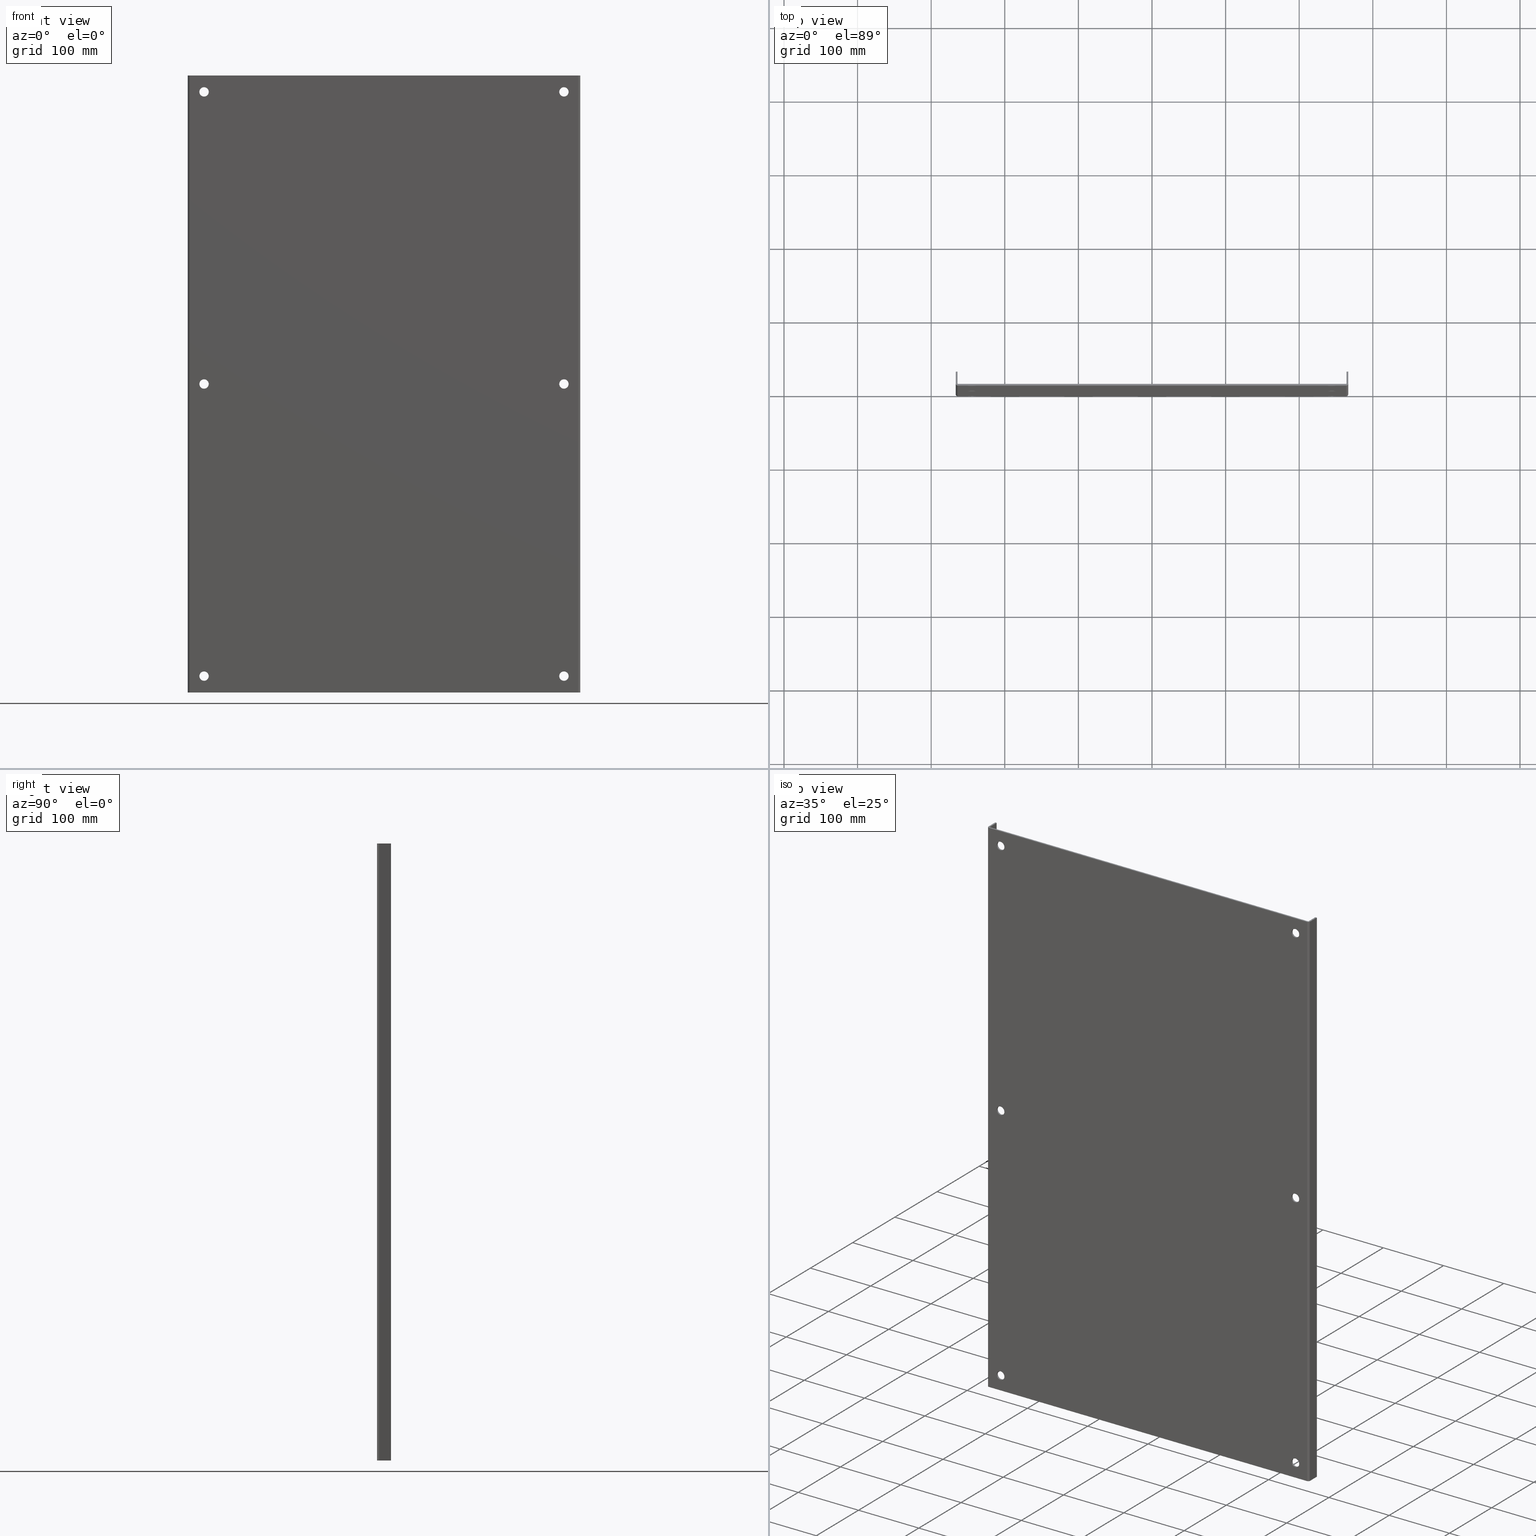
[diagram: canonical four-view strip — front | top / right | iso, engineering-drawing reading convention]
A machine part, canonical four-view strip (front | top / right | iso — engineering-drawing reading convention). The complete STEP part file that produces these views, byte-faithful:
ISO-10303-21;
HEADER;
FILE_DESCRIPTION (( 'STEP AP214' ),
    '1' );
FILE_NAME ('18A3321.STEP',
    '2019-09-13T17:46:24',
    ( '' ),
    ( '' ),
    'SwSTEP 2.0',
    'SolidWorks 2018',
    '' );
FILE_SCHEMA (( 'AUTOMOTIVE_DESIGN' ));
ENDSEC;

DATA;
#1 = COLOUR_RGB ( '',0.7921568627450980005, 0.8196078431372548767, 0.9333333333333333481 ) ;
#2 = SURFACE_STYLE_USAGE ( .BOTH. , #983 ) ;
#3 = ORIENTED_EDGE ( 'NONE', *, *, #547, .T. ) ;
#4 = ORIENTED_EDGE ( 'NONE', *, *, #1036, .T. ) ;
#5 = FILL_AREA_STYLE_COLOUR ( '', #797 ) ;
#6 = ADVANCED_FACE ( 'NONE', ( #927 ), #718, .F. ) ;
#7 = CARTESIAN_POINT ( 'NONE',  ( 10.37500000000000000, 0.1250000000000000000, -16.50000000000000000 ) ) ;
#8 = CARTESIAN_POINT ( 'NONE',  ( -10.37500000000000000, 0.1250000000000000000, 16.50000000000000000 ) ) ;
#9 = VERTEX_POINT ( 'NONE', #845 ) ;
#10 = AXIS2_PLACEMENT_3D ( 'NONE', #7, #440, #174 ) ;
#11 = DIMENSIONAL_EXPONENTS ( 1.000000000000000000, 0.0000000000000000000, 0.0000000000000000000, 0.0000000000000000000, 0.0000000000000000000, 0.0000000000000000000, 0.0000000000000000000 ) ;
#12 = DIRECTION ( 'NONE',  ( 0.0000000000000000000, -1.000000000000000000, 0.0000000000000000000 ) ) ;
#13 = UNCERTAINTY_MEASURE_WITH_UNIT (LENGTH_MEASURE( 1.000000000000000082E-05 ), #402, 'distance_accuracy_value', 'NONE');
#14 = CIRCLE ( 'NONE', #51, 0.1249999999999993477 ) ;
#15 = AXIS2_PLACEMENT_3D ( 'NONE', #71, #1039, #502 ) ;
#16 = ORIENTED_EDGE ( 'NONE', *, *, #840, .F. ) ;
#17 = CARTESIAN_POINT ( 'NONE',  ( 10.50000000000000000, 0.09499999999999998723, 16.50000000000000000 ) ) ;
#18 = VERTEX_POINT ( 'NONE', #389 ) ;
#19 = ORIENTED_EDGE ( 'NONE', *, *, #602, .F. ) ;
#20 = DIRECTION ( 'NONE',  ( -1.000000000000000000, 0.0000000000000000000, 0.0000000000000000000 ) ) ;
#21 = DIRECTION ( 'NONE',  ( 0.0000000000000000000, 0.0000000000000000000, -1.000000000000000000 ) ) ;
#22 = DIRECTION ( 'NONE',  ( 0.0000000000000000000, 0.0000000000000000000, -1.000000000000000000 ) ) ;
#23 = EDGE_CURVE ( 'NONE', #287, #761, #648, .T. ) ;
#24 = SURFACE_STYLE_FILL_AREA ( #208 ) ;
#25 = PLANE ( 'NONE',  #504 ) ;
#26 = CIRCLE ( 'NONE', #443, 0.02999999999999940561 ) ;
#27 = COLOUR_RGB ( '',0.7921568627450980005, 0.8196078431372548767, 0.9333333333333333481 ) ;
#28 = DIRECTION ( 'NONE',  ( -0.0000000000000000000, -1.000000000000000000, -0.0000000000000000000 ) ) ;
#29 = CARTESIAN_POINT ( 'NONE',  ( -10.37500000000000000, 0.1250000000000000000, 16.50000000000000000 ) ) ;
#30 = ADVANCED_FACE ( 'NONE', ( #106, #635 ), #950, .F. ) ;
#31 = EDGE_LOOP ( 'NONE', ( #118 ) ) ;
#32 = PRESENTATION_LAYER_ASSIGNMENT (  '', '', ( #886 ) ) ;
#33 =( NAMED_UNIT ( * ) SI_UNIT ( $, .STERADIAN. ) SOLID_ANGLE_UNIT ( ) );
#34 = MECHANICAL_DESIGN_GEOMETRIC_PRESENTATION_REPRESENTATION (  '', ( #746 ), #303 ) ;
#35 = CARTESIAN_POINT ( 'NONE',  ( -10.37500000000000000, 0.0000000000000000000, 16.50000000000000000 ) ) ;
#36 = CARTESIAN_POINT ( 'NONE',  ( 10.50000000000000000, 0.09499999999999998723, -16.50000000000000355 ) ) ;
#37 = EDGE_CURVE ( 'NONE', #187, #979, #415, .T. ) ;
#38 = VERTEX_POINT ( 'NONE', #762 ) ;
#39 = LINE ( 'NONE', #17, #582 ) ;
#40 = VECTOR ( 'NONE', #206, 39.37007874015748143 ) ;
#41 = CIRCLE ( 'NONE', #587, 0.2500000000000000000 ) ;
#42 = VERTEX_POINT ( 'NONE', #243 ) ;
#43 = CIRCLE ( 'NONE', #816, 0.02999999999999940561 ) ;
#44 = ORIENTED_EDGE ( 'NONE', *, *, #943, .F. ) ;
#45 = ORIENTED_EDGE ( 'NONE', *, *, #335, .F. ) ;
#46 =( NAMED_UNIT ( * ) PLANE_ANGLE_UNIT ( ) SI_UNIT ( $, .RADIAN. ) );
#47 = AXIS2_PLACEMENT_3D ( 'NONE', #281, #293, #379 ) ;
#48 = DIRECTION ( 'NONE',  ( 0.0000000000000000000, 0.0000000000000000000, -1.000000000000000000 ) ) ;
#49 = UNCERTAINTY_MEASURE_WITH_UNIT (LENGTH_MEASURE( 1.000000000000000082E-05 ), #221, 'distance_accuracy_value', 'NONE');
#50 = EDGE_CURVE ( 'NONE', #822, #822, #879, .T. ) ;
#51 = AXIS2_PLACEMENT_3D ( 'NONE', #29, #996, #682 ) ;
#52 = CIRCLE ( 'NONE', #866, 0.2500000000000008882 ) ;
#53 = FACE_OUTER_BOUND ( 'NONE', #881, .T. ) ;
#54 = VERTEX_POINT ( 'NONE', #1044 ) ;
#55 =( LENGTH_UNIT ( ) NAMED_UNIT ( * ) SI_UNIT ( $, .METRE. ) );
#56 = EDGE_CURVE ( 'NONE', #761, #814, #43, .T. ) ;
#57 = CARTESIAN_POINT ( 'NONE',  ( 10.37500000000000000, 0.1250000000000000000, 16.50000000000000000 ) ) ;
#58 = UNCERTAINTY_MEASURE_WITH_UNIT (LENGTH_MEASURE( 1.000000000000000082E-05 ), #675, 'distance_accuracy_value', 'NONE');
#59 = VERTEX_POINT ( 'NONE', #1000 ) ;
#60 = EDGE_CURVE ( 'NONE', #54, #705, #367, .T. ) ;
#61 =( NAMED_UNIT ( * ) PLANE_ANGLE_UNIT ( ) SI_UNIT ( $, .RADIAN. ) );
#62 = PRESENTATION_STYLE_ASSIGNMENT (( #868 ) ) ;
#63 = MECHANICAL_DESIGN_GEOMETRIC_PRESENTATION_REPRESENTATION (  '', ( #537 ), #256 ) ;
#64 = ADVANCED_FACE ( 'NONE', ( #813 ), #473, .T. ) ;
#65 = ORIENTED_EDGE ( 'NONE', *, *, #246, .T. ) ;
#66 = FILL_AREA_STYLE ('',( #736 ) ) ;
#67 = ORIENTED_EDGE ( 'NONE', *, *, #358, .F. ) ;
#68 = VERTEX_POINT ( 'NONE', #485 ) ;
#69 = DIRECTION ( 'NONE',  ( 1.000000000000000000, -0.0000000000000000000, -1.040703997586390056E-16 ) ) ;
#70 =( GEOMETRIC_REPRESENTATION_CONTEXT ( 3 ) GLOBAL_UNCERTAINTY_ASSIGNED_CONTEXT ( ( #316 ) ) GLOBAL_UNIT_ASSIGNED_CONTEXT ( ( #337, #420, #87 ) ) REPRESENTATION_CONTEXT ( 'NONE', 'WORKASPACE' ) );
#71 = CARTESIAN_POINT ( 'NONE',  ( 10.37500000000000000, 0.1250000000000000000, -16.50000000000000000 ) ) ;
#72 = DIRECTION ( 'NONE',  ( 0.0000000000000000000, 1.000000000000000000, -0.0000000000000000000 ) ) ;
#73 = CYLINDRICAL_SURFACE ( 'NONE', #949, 0.2500000000000000000 ) ;
#74 = EDGE_CURVE ( 'NONE', #59, #59, #505, .T. ) ;
#75 = DIRECTION ( 'NONE',  ( -0.0000000000000000000, -1.000000000000000000, 0.0000000000000000000 ) ) ;
#76 =( NAMED_UNIT ( * ) PLANE_ANGLE_UNIT ( ) SI_UNIT ( $, .RADIAN. ) );
#77 = VECTOR ( 'NONE', #837, 39.37007874015748143 ) ;
#78 = UNCERTAINTY_MEASURE_WITH_UNIT (LENGTH_MEASURE( 1.000000000000000082E-05 ), #577, 'distance_accuracy_value', 'NONE');
#79 = FACE_OUTER_BOUND ( 'NONE', #328, .T. ) ;
#80 = VERTEX_POINT ( 'NONE', #967 ) ;
#81 =( NAMED_UNIT ( * ) PLANE_ANGLE_UNIT ( ) SI_UNIT ( $, .RADIAN. ) );
#82 =( LENGTH_UNIT ( ) NAMED_UNIT ( * ) SI_UNIT ( $, .METRE. ) );
#83 =( GEOMETRIC_REPRESENTATION_CONTEXT ( 3 ) GLOBAL_UNCERTAINTY_ASSIGNED_CONTEXT ( ( #125 ) ) GLOBAL_UNIT_ASSIGNED_CONTEXT ( ( #763, #441, #922 ) ) REPRESENTATION_CONTEXT ( 'NONE', 'WORKASPACE' ) );
#84 = MECHANICAL_DESIGN_GEOMETRIC_PRESENTATION_REPRESENTATION (  '', ( #972 ), #1019 ) ;
#85 = VECTOR ( 'NONE', #195, 39.37007874015748143 ) ;
#86 = DIRECTION ( 'NONE',  ( 0.0000000000000000000, 0.0000000000000000000, -1.000000000000000000 ) ) ;
#87 =( NAMED_UNIT ( * ) SI_UNIT ( $, .STERADIAN. ) SOLID_ANGLE_UNIT ( ) );
#88 = AXIS2_PLACEMENT_3D ( 'NONE', #1035, #494, #1028 ) ;
#89 = SURFACE_STYLE_FILL_AREA ( #930 ) ;
#90 = DIRECTION ( 'NONE',  ( 0.0000000000000000000, -1.000000000000000000, 0.0000000000000000000 ) ) ;
#91 = ADVANCED_FACE ( 'NONE', ( #53 ), #309, .F. ) ;
#92 = ORIENTED_EDGE ( 'NONE', *, *, #471, .F. ) ;
#93 = EDGE_LOOP ( 'NONE', ( #390 ) ) ;
#94 = ORIENTED_EDGE ( 'NONE', *, *, #547, .F. ) ;
#95 = CARTESIAN_POINT ( 'NONE',  ( -10.50000000000000000, 0.09499999999999998723, -16.50000000000000000 ) ) ;
#96 = FILL_AREA_STYLE_COLOUR ( '', #809 ) ;
#97 = DIMENSIONAL_EXPONENTS ( 1.000000000000000000, 0.0000000000000000000, 0.0000000000000000000, 0.0000000000000000000, 0.0000000000000000000, 0.0000000000000000000, 0.0000000000000000000 ) ;
#98 = CARTESIAN_POINT ( 'NONE',  ( 10.37500000000000000, 0.1250000000000000000, -16.50000000000000000 ) ) ;
#99 = CARTESIAN_POINT ( 'NONE',  ( 9.625000000000000000, 0.0000000000000000000, -5.463695987328543200E-16 ) ) ;
#100 = STYLED_ITEM ( 'NONE', ( #273 ), #663 ) ;
#101 = FACE_OUTER_BOUND ( 'NONE', #391, .T. ) ;
#102 =( NAMED_UNIT ( * ) SI_UNIT ( $, .STERADIAN. ) SOLID_ANGLE_UNIT ( ) );
#103 = SURFACE_STYLE_FILL_AREA ( #282 ) ;
#104 = CARTESIAN_POINT ( 'NONE',  ( -9.625000000000000000, 0.09499999999999994560, -15.87500000000000178 ) ) ;
#105 = VERTEX_POINT ( 'NONE', #584 ) ;
#106 = FACE_OUTER_BOUND ( 'NONE', #774, .T. ) ;
#107 = DIMENSIONAL_EXPONENTS ( 1.000000000000000000, 0.0000000000000000000, 0.0000000000000000000, 0.0000000000000000000, 0.0000000000000000000, 0.0000000000000000000, 0.0000000000000000000 ) ;
#108 = DIRECTION ( 'NONE',  ( 1.000000000000000000, 0.0000000000000000000, 0.0000000000000000000 ) ) ;
#109 = PLANE ( 'NONE',  #850 ) ;
#110 = EDGE_CURVE ( 'NONE', #721, #721, #867, .T. ) ;
#111 =( CONVERSION_BASED_UNIT ( 'INCH', #112 ) LENGTH_UNIT ( ) NAMED_UNIT ( #107 ) );
#112 = LENGTH_MEASURE_WITH_UNIT ( LENGTH_MEASURE( 0.02539999999999999897 ), #903 );
#113 = DIRECTION ( 'NONE',  ( 0.0000000000000000000, -0.0000000000000000000, -1.000000000000000000 ) ) ;
#114 = FACE_BOUND ( 'NONE', #790, .T. ) ;
#115 = CARTESIAN_POINT ( 'NONE',  ( -9.625000000000000000, 0.0000000000000000000, -0.2500000000000005551 ) ) ;
#116 = PRESENTATION_STYLE_ASSIGNMENT (( #628 ) ) ;
#117 = SURFACE_STYLE_USAGE ( .BOTH. , #469 ) ;
#118 = ORIENTED_EDGE ( 'NONE', *, *, #267, .F. ) ;
#119 = EDGE_LOOP ( 'NONE', ( #447 ) ) ;
#120 = DIRECTION ( 'NONE',  ( 0.0000000000000000000, -0.0000000000000000000, -1.000000000000000000 ) ) ;
#121 = ORIENTED_EDGE ( 'NONE', *, *, #741, .T. ) ;
#122 = AXIS2_PLACEMENT_3D ( 'NONE', #824, #982, #279 ) ;
#123 = DIRECTION ( 'NONE',  ( -6.123233995736769734E-17, 1.000000000000000000, 0.0000000000000000000 ) ) ;
#124 =( NAMED_UNIT ( * ) PLANE_ANGLE_UNIT ( ) SI_UNIT ( $, .RADIAN. ) );
#125 = UNCERTAINTY_MEASURE_WITH_UNIT (LENGTH_MEASURE( 1.000000000000000082E-05 ), #763, 'distance_accuracy_value', 'NONE');
#126 = AXIS2_PLACEMENT_3D ( 'NONE', #593, #818, #255 ) ;
#127 = SURFACE_STYLE_FILL_AREA ( #701 ) ;
#128 = PRESENTATION_STYLE_ASSIGNMENT (( #990 ) ) ;
#129 = FILL_AREA_STYLE_COLOUR ( '', #601 ) ;
#130 = FACE_BOUND ( 'NONE', #264, .T. ) ;
#131 = VECTOR ( 'NONE', #624, 39.37007874015748143 ) ;
#132 = APPLICATION_PROTOCOL_DEFINITION ( 'draft international standard', 'automotive_design', 1998, #461 ) ;
#133 = EDGE_CURVE ( 'NONE', #372, #372, #975, .T. ) ;
#134 = EDGE_LOOP ( 'NONE', ( #418, #4, #815, #312 ) ) ;
#135 = ORIENTED_EDGE ( 'NONE', *, *, #785, .F. ) ;
#136 = DIRECTION ( 'NONE',  ( 0.0000000000000000000, -1.000000000000000000, 0.0000000000000000000 ) ) ;
#137 = MECHANICAL_DESIGN_GEOMETRIC_PRESENTATION_REPRESENTATION (  '', ( #242 ), #697 ) ;
#138 =( GEOMETRIC_REPRESENTATION_CONTEXT ( 3 ) GLOBAL_UNCERTAINTY_ASSIGNED_CONTEXT ( ( #579 ) ) GLOBAL_UNIT_ASSIGNED_CONTEXT ( ( #480, #152, #482 ) ) REPRESENTATION_CONTEXT ( 'NONE', 'WORKASPACE' ) );
#139 = COLOUR_RGB ( '',0.7921568627450980005, 0.8196078431372548767, 0.9333333333333333481 ) ;
#140 = ADVANCED_FACE ( 'NONE', ( #289 ), #970, .T. ) ;
#141 = FILL_AREA_STYLE ('',( #872 ) ) ;
#142 = SURFACE_STYLE_FILL_AREA ( #490 ) ;
#143 = DIRECTION ( 'NONE',  ( 0.0000000000000000000, -0.0000000000000000000, -1.000000000000000000 ) ) ;
#144 = LENGTH_MEASURE_WITH_UNIT ( LENGTH_MEASURE( 0.02539999999999999897 ), #730 );
#145 = ORIENTED_EDGE ( 'NONE', *, *, #317, .T. ) ;
#146 = PRESENTATION_STYLE_ASSIGNMENT (( #162 ) ) ;
#147 = ORIENTED_EDGE ( 'NONE', *, *, #56, .T. ) ;
#148 = VERTEX_POINT ( 'NONE', #666 ) ;
#149 = FILL_AREA_STYLE_COLOUR ( '', #397 ) ;
#150 = EDGE_CURVE ( 'NONE', #42, #725, #914, .T. ) ;
#151 = FILL_AREA_STYLE ('',( #1013 ) ) ;
#152 =( NAMED_UNIT ( * ) PLANE_ANGLE_UNIT ( ) SI_UNIT ( $, .RADIAN. ) );
#153 = DIRECTION ( 'NONE',  ( 0.0000000000000000000, 0.0000000000000000000, 1.000000000000000000 ) ) ;
#154 =( NAMED_UNIT ( * ) PLANE_ANGLE_UNIT ( ) SI_UNIT ( $, .RADIAN. ) );
#155 = FILL_AREA_STYLE_COLOUR ( '', #539 ) ;
#156 = CARTESIAN_POINT ( 'NONE',  ( -10.40499999999999936, 0.1250000000000000000, -16.50000000000000000 ) ) ;
#157 = SURFACE_SIDE_STYLE ('',( #448 ) ) ;
#158 = EDGE_LOOP ( 'NONE', ( #939 ) ) ;
#159 = ORIENTED_EDGE ( 'NONE', *, *, #1045, .T. ) ;
#160 = DIRECTION ( 'NONE',  ( -1.000000000000000000, -0.0000000000000000000, -1.040703997586390056E-16 ) ) ;
#161 = PRESENTATION_LAYER_ASSIGNMENT (  '', '', ( #683 ) ) ;
#162 = SURFACE_STYLE_USAGE ( .BOTH. , #398 ) ;
#163 = CARTESIAN_POINT ( 'NONE',  ( -10.50000000000000000, 0.1250000000000000000, 16.50000000000000000 ) ) ;
#164 = CIRCLE ( 'NONE', #699, 0.2500000000000000000 ) ;
#165 = LENGTH_MEASURE_WITH_UNIT ( LENGTH_MEASURE( 0.02539999999999999897 ), #82 );
#166 = EDGE_CURVE ( 'NONE', #105, #42, #633, .T. ) ;
#167 = PLANE ( 'NONE',  #654 ) ;
#168 = FACE_OUTER_BOUND ( 'NONE', #119, .T. ) ;
#169 = COLOUR_RGB ( '',0.7921568627450980005, 0.8196078431372548767, 0.9333333333333333481 ) ;
#170 = DIMENSIONAL_EXPONENTS ( 1.000000000000000000, 0.0000000000000000000, 0.0000000000000000000, 0.0000000000000000000, 0.0000000000000000000, 0.0000000000000000000, 0.0000000000000000000 ) ;
#171 = SURFACE_STYLE_FILL_AREA ( #66 ) ;
#172 = ORIENTED_EDGE ( 'NONE', *, *, #60, .T. ) ;
#173 = VECTOR ( 'NONE', #153, 39.37007874015748143 ) ;
#174 = DIRECTION ( 'NONE',  ( 1.000000000000000000, 0.0000000000000000000, 0.0000000000000000000 ) ) ;
#175 = VERTEX_POINT ( 'NONE', #669 ) ;
#176 =( CONVERSION_BASED_UNIT ( 'INCH', #413 ) LENGTH_UNIT ( ) NAMED_UNIT ( #339 ) );
#177 = DIRECTION ( 'NONE',  ( 0.0000000000000000000, -1.000000000000000000, 0.0000000000000000000 ) ) ;
#178 = PRESENTATION_LAYER_ASSIGNMENT (  '', '', ( #746 ) ) ;
#179 = CARTESIAN_POINT ( 'NONE',  ( -10.50000000000000000, 0.09499999999999998723, -16.50000000000000000 ) ) ;
#180 = CARTESIAN_POINT ( 'NONE',  ( 10.40499999999999936, 0.7500000000000001110, 16.50000000000000000 ) ) ;
#181 = DIMENSIONAL_EXPONENTS ( 1.000000000000000000, 0.0000000000000000000, 0.0000000000000000000, 0.0000000000000000000, 0.0000000000000000000, 0.0000000000000000000, 0.0000000000000000000 ) ;
#182 = PRESENTATION_LAYER_ASSIGNMENT (  '', '', ( #994 ) ) ;
#183 = COLOUR_RGB ( '',0.7921568627450980005, 0.8196078431372548767, 0.9333333333333333481 ) ;
#184 =( LENGTH_UNIT ( ) NAMED_UNIT ( * ) SI_UNIT ( $, .METRE. ) );
#185 = FACE_OUTER_BOUND ( 'NONE', #801, .T. ) ;
#186 = CARTESIAN_POINT ( 'NONE',  ( 10.50000000000000000, 0.7500000000000001110, 16.50000000000000000 ) ) ;
#187 = VERTEX_POINT ( 'NONE', #180 ) ;
#188 = SURFACE_STYLE_FILL_AREA ( #472 ) ;
#189 = DIRECTION ( 'NONE',  ( -1.000000000000000000, -0.0000000000000000000, -1.040703997586390056E-16 ) ) ;
#190 = EDGE_CURVE ( 'NONE', #1006, #175, #799, .T. ) ;
#191 =( NAMED_UNIT ( * ) PLANE_ANGLE_UNIT ( ) SI_UNIT ( $, .RADIAN. ) );
#192 = DIRECTION ( 'NONE',  ( 0.0000000000000000000, -1.000000000000000000, 0.0000000000000000000 ) ) ;
#193 = ADVANCED_BREP_SHAPE_REPRESENTATION ( '18A3321', ( #594, #47 ), #988 ) ;
#194 = COLOUR_RGB ( '',0.7921568627450980005, 0.8196078431372548767, 0.9333333333333333481 ) ;
#195 = DIRECTION ( 'NONE',  ( 0.0000000000000000000, 1.000000000000000000, 0.0000000000000000000 ) ) ;
#196 = SURFACE_SIDE_STYLE ('',( #912 ) ) ;
#197 =( GEOMETRIC_REPRESENTATION_CONTEXT ( 3 ) GLOBAL_UNCERTAINTY_ASSIGNED_CONTEXT ( ( #954 ) ) GLOBAL_UNIT_ASSIGNED_CONTEXT ( ( #310, #474, #786 ) ) REPRESENTATION_CONTEXT ( 'NONE', 'WORKASPACE' ) );
#198 = CARTESIAN_POINT ( 'NONE',  ( -9.625000000000000000, 0.09499999999999994560, 15.37500000000000000 ) ) ;
#199 = ORIENTED_EDGE ( 'NONE', *, *, #388, .T. ) ;
#200 = STYLED_ITEM ( 'NONE', ( #373 ), #896 ) ;
#201 = SURFACE_STYLE_FILL_AREA ( #326 ) ;
#202 = CARTESIAN_POINT ( 'NONE',  ( 10.50000000000000000, 0.09499999999999998723, 16.50000000000000000 ) ) ;
#203 = ORIENTED_EDGE ( 'NONE', *, *, #23, .T. ) ;
#204 = ORIENTED_EDGE ( 'NONE', *, *, #1005, .T. ) ;
#205 =( CONVERSION_BASED_UNIT ( 'INCH', #319 ) LENGTH_UNIT ( ) NAMED_UNIT ( #753 ) );
#206 = DIRECTION ( 'NONE',  ( -0.0000000000000000000, -1.000000000000000000, 0.0000000000000000000 ) ) ;
#207 = EDGE_CURVE ( 'NONE', #314, #979, #789, .T. ) ;
#208 = FILL_AREA_STYLE ('',( #284 ) ) ;
#209 = VECTOR ( 'NONE', #28, 39.37007874015748143 ) ;
#210 = SURFACE_STYLE_USAGE ( .BOTH. , #1008 ) ;
#211 = UNCERTAINTY_MEASURE_WITH_UNIT (LENGTH_MEASURE( 1.000000000000000082E-05 ), #295, 'distance_accuracy_value', 'NONE');
#212 = LENGTH_MEASURE_WITH_UNIT ( LENGTH_MEASURE( 0.02539999999999999897 ), #55 );
#213 = CIRCLE ( 'NONE', #782, 0.02999999999999940561 ) ;
#214 = DIRECTION ( 'NONE',  ( 1.000000000000000000, 6.123233995736769734E-17, 0.0000000000000000000 ) ) ;
#215 = MECHANICAL_DESIGN_GEOMETRIC_PRESENTATION_REPRESENTATION (  '', ( #311 ), #716 ) ;
#216 = ORIENTED_EDGE ( 'NONE', *, *, #296, .T. ) ;
#217 = PRODUCT_CONTEXT ( 'NONE', #915, 'mechanical' ) ;
#218 = VERTEX_POINT ( 'NONE', #676 ) ;
#219 = AXIS2_PLACEMENT_3D ( 'NONE', #57, #632, #719 ) ;
#220 = CARTESIAN_POINT ( 'NONE',  ( 10.40499999999999936, 0.09379024048199331720, 16.50000000000000000 ) ) ;
#221 =( CONVERSION_BASED_UNIT ( 'INCH', #509 ) LENGTH_UNIT ( ) NAMED_UNIT ( #908 ) );
#222 = STYLED_ITEM ( 'NONE', ( #338 ), #510 ) ;
#223 = DIRECTION ( 'NONE',  ( 0.0000000000000000000, 0.0000000000000000000, -1.000000000000000000 ) ) ;
#224 = COLOUR_RGB ( '',0.7921568627450980005, 0.8196078431372548767, 0.9333333333333333481 ) ;
#225 = SURFACE_STYLE_FILL_AREA ( #895 ) ;
#226 = MECHANICAL_DESIGN_GEOMETRIC_PRESENTATION_REPRESENTATION (  '', ( #376 ), #629 ) ;
#227 = VERTEX_POINT ( 'NONE', #600 ) ;
#228 = ADVANCED_FACE ( 'NONE', ( #79 ), #237, .F. ) ;
#229 = ORIENTED_EDGE ( 'NONE', *, *, #1045, .F. ) ;
#230 = FILL_AREA_STYLE_COLOUR ( '', #787 ) ;
#231 =( CONVERSION_BASED_UNIT ( 'INCH', #700 ) LENGTH_UNIT ( ) NAMED_UNIT ( #97 ) );
#232 = DIRECTION ( 'NONE',  ( -1.000000000000000000, 0.0000000000000000000, 0.0000000000000000000 ) ) ;
#233 = SURFACE_STYLE_FILL_AREA ( #253 ) ;
#234 = PRESENTATION_LAYER_ASSIGNMENT (  '', '', ( #439 ) ) ;
#235 = PRESENTATION_STYLE_ASSIGNMENT (( #947 ) ) ;
#236 =( LENGTH_UNIT ( ) NAMED_UNIT ( * ) SI_UNIT ( $, .METRE. ) );
#237 = CYLINDRICAL_SURFACE ( 'NONE', #1038, 0.02999999999999940561 ) ;
#238 = EDGE_LOOP ( 'NONE', ( #588 ) ) ;
#239 = ORIENTED_EDGE ( 'NONE', *, *, #207, .F. ) ;
#240 = EDGE_LOOP ( 'NONE', ( #229, #199, #952, #749 ) ) ;
#241 = DIRECTION ( 'NONE',  ( 0.0000000000000000000, 0.0000000000000000000, -1.000000000000000000 ) ) ;
#242 = STYLED_ITEM ( 'NONE', ( #962 ), #425 ) ;
#243 = CARTESIAN_POINT ( 'NONE',  ( -10.40499999999999936, 0.7500000000000001110, -16.50000000000000000 ) ) ;
#244 = CARTESIAN_POINT ( 'NONE',  ( 10.40499999999999936, 0.1250000000000000000, 16.50000000000000000 ) ) ;
#245 = DIRECTION ( 'NONE',  ( 0.0000000000000000000, 0.0000000000000000000, -1.000000000000000000 ) ) ;
#246 = EDGE_CURVE ( 'NONE', #513, #218, #738, .T. ) ;
#247 = FACE_OUTER_BOUND ( 'NONE', #343, .T. ) ;
#248 = FACE_BOUND ( 'NONE', #951, .T. ) ;
#249 = SURFACE_STYLE_FILL_AREA ( #834 ) ;
#250 = CARTESIAN_POINT ( 'NONE',  ( 10.50000000000000000, 0.7500000000000001110, 16.50000000000000000 ) ) ;
#251 = ORIENTED_EDGE ( 'NONE', *, *, #526, .T. ) ;
#252 = DIMENSIONAL_EXPONENTS ( 1.000000000000000000, 0.0000000000000000000, 0.0000000000000000000, 0.0000000000000000000, 0.0000000000000000000, 0.0000000000000000000, 0.0000000000000000000 ) ;
#253 = FILL_AREA_STYLE ('',( #803 ) ) ;
#254 = STYLED_ITEM ( 'NONE', ( #760 ), #140 ) ;
#255 = DIRECTION ( 'NONE',  ( -1.000000000000000000, 0.0000000000000000000, 0.0000000000000000000 ) ) ;
#256 =( GEOMETRIC_REPRESENTATION_CONTEXT ( 3 ) GLOBAL_UNCERTAINTY_ASSIGNED_CONTEXT ( ( #516 ) ) GLOBAL_UNIT_ASSIGNED_CONTEXT ( ( #111, #452, #33 ) ) REPRESENTATION_CONTEXT ( 'NONE', 'WORKASPACE' ) );
#257 = CARTESIAN_POINT ( 'NONE',  ( 10.50000000000000000, 0.09499999999999998723, 16.50000000000000000 ) ) ;
#258 =( NAMED_UNIT ( * ) SI_UNIT ( $, .STERADIAN. ) SOLID_ANGLE_UNIT ( ) );
#259 = FACE_OUTER_BOUND ( 'NONE', #414, .T. ) ;
#260 = STYLED_ITEM ( 'NONE', ( #298 ), #30 ) ;
#261 = CARTESIAN_POINT ( 'NONE',  ( 10.40499999999999936, 0.7500000000000001110, -16.50000000000000355 ) ) ;
#262 =( LENGTH_UNIT ( ) NAMED_UNIT ( * ) SI_UNIT ( $, .METRE. ) );
#263 = LINE ( 'NONE', #854, #40 ) ;
#264 = EDGE_LOOP ( 'NONE', ( #145 ) ) ;
#265 = ORIENTED_EDGE ( 'NONE', *, *, #910, .T. ) ;
#266 = ORIENTED_EDGE ( 'NONE', *, *, #37, .F. ) ;
#267 = EDGE_CURVE ( 'NONE', #38, #38, #41, .T. ) ;
#268 = DIRECTION ( 'NONE',  ( -1.000000000000000000, 0.0000000000000000000, 0.0000000000000000000 ) ) ;
#269 = CARTESIAN_POINT ( 'NONE',  ( 10.40499999999999936, 0.1250000000000000000, -16.50000000000000000 ) ) ;
#270 = STYLED_ITEM ( 'NONE', ( #235 ), #604 ) ;
#271 = CARTESIAN_POINT ( 'NONE',  ( 10.37500000000000000, 0.0000000000000000000, 16.50000000000000000 ) ) ;
#272 = DIRECTION ( 'NONE',  ( -1.040703997586390056E-16, 0.0000000000000000000, 1.000000000000000000 ) ) ;
#273 = PRESENTATION_STYLE_ASSIGNMENT (( #499 ) ) ;
#274 = PRESENTATION_LAYER_ASSIGNMENT (  '', '', ( #556 ) ) ;
#275 =( NAMED_UNIT ( * ) SI_UNIT ( $, .STERADIAN. ) SOLID_ANGLE_UNIT ( ) );
#276 = CARTESIAN_POINT ( 'NONE',  ( -9.625000000000000000, 0.0000000000000000000, 15.62500000000000178 ) ) ;
#277 = PRESENTATION_STYLE_ASSIGNMENT (( #807 ) ) ;
#278 = EDGE_LOOP ( 'NONE', ( #565 ) ) ;
#279 = DIRECTION ( 'NONE',  ( 0.0000000000000000000, 0.0000000000000000000, -1.000000000000000000 ) ) ;
#280 = CARTESIAN_POINT ( 'NONE',  ( -9.625000000000000000, 39.12240406723496733, -15.62500000000000178 ) ) ;
#281 = CARTESIAN_POINT ( 'NONE',  ( 0.0000000000000000000, 0.0000000000000000000, 0.0000000000000000000 ) ) ;
#282 = FILL_AREA_STYLE ('',( #1004 ) ) ;
#283 = COLOUR_RGB ( '',0.7921568627450980005, 0.8196078431372548767, 0.9333333333333333481 ) ;
#284 = FILL_AREA_STYLE_COLOUR ( '', #283 ) ;
#285 = UNCERTAINTY_MEASURE_WITH_UNIT (LENGTH_MEASURE( 1.000000000000000082E-05 ), #496, 'distance_accuracy_value', 'NONE');
#286 = DIRECTION ( 'NONE',  ( -0.0000000000000000000, -1.000000000000000000, -0.0000000000000000000 ) ) ;
#287 = VERTEX_POINT ( 'NONE', #768 ) ;
#288 = MECHANICAL_DESIGN_GEOMETRIC_PRESENTATION_REPRESENTATION (  '', ( #439 ), #558 ) ;
#289 = FACE_OUTER_BOUND ( 'NONE', #404, .T. ) ;
#290 = ORIENTED_EDGE ( 'NONE', *, *, #785, .T. ) ;
#291 = SURFACE_STYLE_USAGE ( .BOTH. , #627 ) ;
#292 = AXIS2_PLACEMENT_3D ( 'NONE', #695, #192, #530 ) ;
#293 = DIRECTION ( 'NONE',  ( 0.0000000000000000000, 0.0000000000000000000, 1.000000000000000000 ) ) ;
#294 = CIRCLE ( 'NONE', #401, 0.2500000000000008882 ) ;
#295 =( CONVERSION_BASED_UNIT ( 'INCH', #399 ) LENGTH_UNIT ( ) NAMED_UNIT ( #674 ) );
#296 = EDGE_CURVE ( 'NONE', #80, #175, #623, .T. ) ;
#297 = ORIENTED_EDGE ( 'NONE', *, *, #335, .T. ) ;
#298 = PRESENTATION_STYLE_ASSIGNMENT (( #649 ) ) ;
#299 = SURFACE_SIDE_STYLE ('',( #673 ) ) ;
#300 =( NAMED_UNIT ( * ) PLANE_ANGLE_UNIT ( ) SI_UNIT ( $, .RADIAN. ) );
#301 = MECHANICAL_DESIGN_GEOMETRIC_PRESENTATION_REPRESENTATION (  '', ( #683 ), #702 ) ;
#302 = FILL_AREA_STYLE_COLOUR ( '', #329 ) ;
#303 =( GEOMETRIC_REPRESENTATION_CONTEXT ( 3 ) GLOBAL_UNCERTAINTY_ASSIGNED_CONTEXT ( ( #906 ) ) GLOBAL_UNIT_ASSIGNED_CONTEXT ( ( #340, #592, #684 ) ) REPRESENTATION_CONTEXT ( 'NONE', 'WORKASPACE' ) );
#304 = VECTOR ( 'NONE', #108, 39.37007874015748143 ) ;
#305 =( CONVERSION_BASED_UNIT ( 'INCH', #1031 ) LENGTH_UNIT ( ) NAMED_UNIT ( #811 ) );
#306 = FACE_OUTER_BOUND ( 'NONE', #134, .T. ) ;
#307 = SURFACE_SIDE_STYLE ('',( #188 ) ) ;
#308 = LINE ( 'NONE', #1014, #548 ) ;
#309 = CYLINDRICAL_SURFACE ( 'NONE', #15, 0.02999999999999940561 ) ;
#310 =( CONVERSION_BASED_UNIT ( 'INCH', #924 ) LENGTH_UNIT ( ) NAMED_UNIT ( #421 ) );
#311 = STYLED_ITEM ( 'NONE', ( #501 ), #91 ) ;
#312 = ORIENTED_EDGE ( 'NONE', *, *, #296, .F. ) ;
#313 = ORIENTED_EDGE ( 'NONE', *, *, #910, .F. ) ;
#314 = VERTEX_POINT ( 'NONE', #269 ) ;
#315 =( NAMED_UNIT ( * ) SI_UNIT ( $, .STERADIAN. ) SOLID_ANGLE_UNIT ( ) );
#316 = UNCERTAINTY_MEASURE_WITH_UNIT (LENGTH_MEASURE( 1.000000000000000082E-05 ), #337, 'distance_accuracy_value', 'NONE');
#317 = EDGE_CURVE ( 'NONE', #871, #871, #400, .T. ) ;
#318 = CARTESIAN_POINT ( 'NONE',  ( -10.50000000000000000, 0.09499999999999998723, 16.50000000000000000 ) ) ;
#319 = LENGTH_MEASURE_WITH_UNIT ( LENGTH_MEASURE( 0.02539999999999999897 ), #921 );
#320 =( LENGTH_UNIT ( ) NAMED_UNIT ( * ) SI_UNIT ( $, .METRE. ) );
#321 = PRESENTATION_STYLE_ASSIGNMENT (( #598 ) ) ;
#322 = AXIS2_PLACEMENT_3D ( 'NONE', #805, #1047, #332 ) ;
#323 = CIRCLE ( 'NONE', #808, 0.2500000000000008882 ) ;
#324 =( NAMED_UNIT ( * ) SI_UNIT ( $, .STERADIAN. ) SOLID_ANGLE_UNIT ( ) );
#325 = PRESENTATION_STYLE_ASSIGNMENT (( #117 ) ) ;
#326 = FILL_AREA_STYLE ('',( #155 ) ) ;
#327 = FACE_OUTER_BOUND ( 'NONE', #342, .T. ) ;
#328 = EDGE_LOOP ( 'NONE', ( #993, #878, #313, #901 ) ) ;
#329 = COLOUR_RGB ( '',0.7921568627450980005, 0.8196078431372548767, 0.9333333333333333481 ) ;
#330 = DIRECTION ( 'NONE',  ( 0.0000000000000000000, 0.0000000000000000000, -1.000000000000000000 ) ) ;
#331 = PRESENTATION_LAYER_ASSIGNMENT (  '', '', ( #500 ) ) ;
#332 = DIRECTION ( 'NONE',  ( 0.0000000000000000000, 0.0000000000000000000, -1.000000000000000000 ) ) ;
#333 =( NAMED_UNIT ( * ) PLANE_ANGLE_UNIT ( ) SI_UNIT ( $, .RADIAN. ) );
#334 = ADVANCED_FACE ( 'NONE', ( #185 ), #830, .T. ) ;
#335 = EDGE_CURVE ( 'NONE', #366, #80, #14, .T. ) ;
#336 = VECTOR ( 'NONE', #160, 39.37007874015748143 ) ;
#337 =( CONVERSION_BASED_UNIT ( 'INCH', #605 ) LENGTH_UNIT ( ) NAMED_UNIT ( #170 ) );
#338 = PRESENTATION_STYLE_ASSIGNMENT (( #291 ) ) ;
#339 = DIMENSIONAL_EXPONENTS ( 1.000000000000000000, 0.0000000000000000000, 0.0000000000000000000, 0.0000000000000000000, 0.0000000000000000000, 0.0000000000000000000, 0.0000000000000000000 ) ;
#340 =( CONVERSION_BASED_UNIT ( 'INCH', #709 ) LENGTH_UNIT ( ) NAMED_UNIT ( #832 ) );
#341 = SURFACE_SIDE_STYLE ('',( #713 ) ) ;
#342 = EDGE_LOOP ( 'NONE', ( #1021, #690, #239, #563 ) ) ;
#343 = EDGE_LOOP ( 'NONE', ( #204, #381, #542, #487 ) ) ;
#344 = EDGE_LOOP ( 'NONE', ( #618 ) ) ;
#345 = FILL_AREA_STYLE_COLOUR ( '', #455 ) ;
#346 = CARTESIAN_POINT ( 'NONE',  ( -9.625000000000000000, 0.0000000000000000000, -15.62500000000000178 ) ) ;
#347 = DIRECTION ( 'NONE',  ( 0.0000000000000000000, -1.000000000000000000, 0.0000000000000000000 ) ) ;
#348 = DIRECTION ( 'NONE',  ( 6.123233995736769734E-17, 1.000000000000000000, 0.0000000000000000000 ) ) ;
#349 = LENGTH_MEASURE_WITH_UNIT ( LENGTH_MEASURE( 0.02539999999999999897 ), #184 );
#350 = MECHANICAL_DESIGN_GEOMETRIC_PRESENTATION_REPRESENTATION (  '', ( #254 ), #70 ) ;
#351 = DIMENSIONAL_EXPONENTS ( 1.000000000000000000, 0.0000000000000000000, 0.0000000000000000000, 0.0000000000000000000, 0.0000000000000000000, 0.0000000000000000000, 0.0000000000000000000 ) ;
#352 = FILL_AREA_STYLE_COLOUR ( '', #224 ) ;
#353 = LINE ( 'NONE', #614, #851 ) ;
#354 = UNCERTAINTY_MEASURE_WITH_UNIT (LENGTH_MEASURE( 1.000000000000000082E-05 ), #380, 'distance_accuracy_value', 'NONE');
#355 = ORIENTED_EDGE ( 'NONE', *, *, #602, .T. ) ;
#356 =( LENGTH_UNIT ( ) NAMED_UNIT ( * ) SI_UNIT ( $, .METRE. ) );
#357 = DIMENSIONAL_EXPONENTS ( 1.000000000000000000, 0.0000000000000000000, 0.0000000000000000000, 0.0000000000000000000, 0.0000000000000000000, 0.0000000000000000000, 0.0000000000000000000 ) ;
#358 = EDGE_CURVE ( 'NONE', #366, #1006, #378, .T. ) ;
#359 = CARTESIAN_POINT ( 'NONE',  ( 9.625000000000000000, 0.0000000000000000000, 15.37500000000000000 ) ) ;
#360 = DIRECTION ( 'NONE',  ( 1.000000000000000000, 0.0000000000000000000, 1.040703997586390056E-16 ) ) ;
#361 = AXIS2_PLACEMENT_3D ( 'NONE', #821, #177, #751 ) ;
#362 = CARTESIAN_POINT ( 'NONE',  ( -9.625000000000000000, 0.0000000000000000000, -15.87500000000000178 ) ) ;
#363 = STYLED_ITEM ( 'NONE', ( #671 ), #193 ) ;
#364 = SURFACE_STYLE_USAGE ( .BOTH. , #538 ) ;
#365 = VECTOR ( 'NONE', #825, 39.37007874015748143 ) ;
#366 = VERTEX_POINT ( 'NONE', #35 ) ;
#367 = LINE ( 'NONE', #393, #173 ) ;
#368 = ORIENTED_EDGE ( 'NONE', *, *, #166, .F. ) ;
#369 = AXIS2_PLACEMENT_3D ( 'NONE', #964, #1032, #567 ) ;
#370 =( CONVERSION_BASED_UNIT ( 'INCH', #408 ) LENGTH_UNIT ( ) NAMED_UNIT ( #759 ) );
#371 = CARTESIAN_POINT ( 'NONE',  ( 10.50000000000000000, 0.09379024048199331720, 16.50000000000000000 ) ) ;
#372 = VERTEX_POINT ( 'NONE', #362 ) ;
#373 = PRESENTATION_STYLE_ASSIGNMENT (( #744 ) ) ;
#374 =( LENGTH_UNIT ( ) NAMED_UNIT ( * ) SI_UNIT ( $, .METRE. ) );
#375 = PRESENTATION_STYLE_ASSIGNMENT (( #958 ) ) ;
#376 = STYLED_ITEM ( 'NONE', ( #965 ), #6 ) ;
#377 = LINE ( 'NONE', #1009, #131 ) ;
#378 = LINE ( 'NONE', #920, #432 ) ;
#379 = DIRECTION ( 'NONE',  ( 1.000000000000000000, 0.0000000000000000000, 0.0000000000000000000 ) ) ;
#380 =( CONVERSION_BASED_UNIT ( 'INCH', #622 ) LENGTH_UNIT ( ) NAMED_UNIT ( #670 ) );
#381 = ORIENTED_EDGE ( 'NONE', *, *, #406, .T. ) ;
#382 = EDGE_LOOP ( 'NONE', ( #290 ) ) ;
#383 =( NAMED_UNIT ( * ) SI_UNIT ( $, .STERADIAN. ) SOLID_ANGLE_UNIT ( ) );
#384 = PRODUCT_DEFINITION_CONTEXT ( 'detailed design', #461, 'design' ) ;
#385 = AXIS2_PLACEMENT_3D ( 'NONE', #820, #12, #672 ) ;
#386 = DIRECTION ( 'NONE',  ( 0.0000000000000000000, -1.000000000000000000, 0.0000000000000000000 ) ) ;
#387 = PRESENTATION_STYLE_ASSIGNMENT (( #724 ) ) ;
#388 = EDGE_CURVE ( 'NONE', #18, #68, #1018, .T. ) ;
#389 = CARTESIAN_POINT ( 'NONE',  ( 10.50000000000000000, 0.7500000000000001110, -16.50000000000000000 ) ) ;
#390 = ORIENTED_EDGE ( 'NONE', *, *, #696, .F. ) ;
#391 = EDGE_LOOP ( 'NONE', ( #216, #677, #67, #297 ) ) ;
#392 = FILL_AREA_STYLE ('',( #230 ) ) ;
#393 = CARTESIAN_POINT ( 'NONE',  ( 10.50000000000000000, 0.1250000000000000000, -16.50000000000000000 ) ) ;
#394 = UNCERTAINTY_MEASURE_WITH_UNIT (LENGTH_MEASURE( 1.000000000000000082E-05 ), #788, 'distance_accuracy_value', 'NONE');
#395 = AXIS2_PLACEMENT_3D ( 'NONE', #431, #347, #905 ) ;
#396 = CARTESIAN_POINT ( 'NONE',  ( -10.50000000000000000, 0.7500000000000001110, 16.50000000000000000 ) ) ;
#397 = COLOUR_RGB ( '',0.7921568627450980005, 0.8196078431372548767, 0.9333333333333333481 ) ;
#398 = SURFACE_SIDE_STYLE ('',( #201 ) ) ;
#399 = LENGTH_MEASURE_WITH_UNIT ( LENGTH_MEASURE( 0.02539999999999999897 ), #619 );
#400 = CIRCLE ( 'NONE', #292, 0.2500000000000000000 ) ;
#401 = AXIS2_PLACEMENT_3D ( 'NONE', #637, #136, #955 ) ;
#402 =( CONVERSION_BASED_UNIT ( 'INCH', #900 ) LENGTH_UNIT ( ) NAMED_UNIT ( #971 ) );
#403 = ORIENTED_EDGE ( 'NONE', *, *, #317, .F. ) ;
#404 = EDGE_LOOP ( 'NONE', ( #892, #977, #1023, #203 ) ) ;
#405 = FILL_AREA_STYLE ('',( #1041 ) ) ;
#406 = EDGE_CURVE ( 'NONE', #980, #856, #353, .T. ) ;
#407 = DIRECTION ( 'NONE',  ( 0.0000000000000000000, -1.000000000000000000, 0.0000000000000000000 ) ) ;
#408 = LENGTH_MEASURE_WITH_UNIT ( LENGTH_MEASURE( 0.02539999999999999897 ), #524 );
#409 = SURFACE_SIDE_STYLE ('',( #171 ) ) ;
#410 = CIRCLE ( 'NONE', #10, 0.1249999999999993477 ) ;
#411 = VECTOR ( 'NONE', #72, 39.37007874015748143 ) ;
#412 = DIRECTION ( 'NONE',  ( -0.0000000000000000000, 0.0000000000000000000, 1.000000000000000000 ) ) ;
#413 = LENGTH_MEASURE_WITH_UNIT ( LENGTH_MEASURE( 0.02539999999999999897 ), #987 );
#414 = EDGE_LOOP ( 'NONE', ( #368, #855, #829, #865 ) ) ;
#415 = LINE ( 'NONE', #802, #748 ) ;
#416 = CARTESIAN_POINT ( 'NONE',  ( -9.625000000000000000, 0.09499999999999994560, 15.62500000000000178 ) ) ;
#417 = AXIS2_PLACEMENT_3D ( 'NONE', #280, #532, #22 ) ;
#418 = ORIENTED_EDGE ( 'NONE', *, *, #720, .F. ) ;
#419 = EDGE_LOOP ( 'NONE', ( #564 ) ) ;
#420 =( NAMED_UNIT ( * ) PLANE_ANGLE_UNIT ( ) SI_UNIT ( $, .RADIAN. ) );
#421 = DIMENSIONAL_EXPONENTS ( 1.000000000000000000, 0.0000000000000000000, 0.0000000000000000000, 0.0000000000000000000, 0.0000000000000000000, 0.0000000000000000000, 0.0000000000000000000 ) ;
#422 = PRESENTATION_LAYER_ASSIGNMENT (  '', '', ( #200 ) ) ;
#423 = FILL_AREA_STYLE ('',( #743 ) ) ;
#424 = PRESENTATION_LAYER_ASSIGNMENT (  '', '', ( #311 ) ) ;
#425 = ADVANCED_FACE ( 'NONE', ( #486, #991 ), #458, .F. ) ;
#426 = VERTEX_POINT ( 'NONE', #104 ) ;
#427 = CARTESIAN_POINT ( 'NONE',  ( 9.625000000000000000, 0.09499999999999994560, -5.463695987328543200E-16 ) ) ;
#428 = FACE_BOUND ( 'NONE', #158, .T. ) ;
#429 = DIRECTION ( 'NONE',  ( 1.000000000000000000, -0.0000000000000000000, -1.040703997586390056E-16 ) ) ;
#430 = VECTOR ( 'NONE', #849, 39.37007874015748143 ) ;
#431 = CARTESIAN_POINT ( 'NONE',  ( -10.50000000000000000, 0.0000000000000000000, -16.50000000000000000 ) ) ;
#432 = VECTOR ( 'NONE', #113, 39.37007874015748143 ) ;
#433 = DIRECTION ( 'NONE',  ( 1.000000000000000000, -6.123233995736769734E-17, 0.0000000000000000000 ) ) ;
#434 = ORIENTED_EDGE ( 'NONE', *, *, #1026, .T. ) ;
#435 = VECTOR ( 'NONE', #143, 39.37007874015748143 ) ;
#436 = EDGE_CURVE ( 'NONE', #754, #754, #551, .T. ) ;
#437 = EDGE_LOOP ( 'NONE', ( #844, #791, #728, #266 ) ) ;
#438 =( CONVERSION_BASED_UNIT ( 'INCH', #712 ) LENGTH_UNIT ( ) NAMED_UNIT ( #913 ) );
#439 = STYLED_ITEM ( 'NONE', ( #779 ), #1029 ) ;
#440 = DIRECTION ( 'NONE',  ( 0.0000000000000000000, 0.0000000000000000000, 1.000000000000000000 ) ) ;
#441 =( NAMED_UNIT ( * ) PLANE_ANGLE_UNIT ( ) SI_UNIT ( $, .RADIAN. ) );
#442 = AXIS2_PLACEMENT_3D ( 'NONE', #371, #859, #936 ) ;
#443 = AXIS2_PLACEMENT_3D ( 'NONE', #833, #86, #268 ) ;
#444 = DIRECTION ( 'NONE',  ( 0.0000000000000000000, 0.0000000000000000000, -1.000000000000000000 ) ) ;
#445 = ADVANCED_FACE ( 'NONE', ( #327 ), #109, .F. ) ;
#446 =( NAMED_UNIT ( * ) SI_UNIT ( $, .STERADIAN. ) SOLID_ANGLE_UNIT ( ) );
#447 = ORIENTED_EDGE ( 'NONE', *, *, #50, .F. ) ;
#448 = SURFACE_STYLE_FILL_AREA ( #151 ) ;
#449 = ORIENTED_EDGE ( 'NONE', *, *, #74, .T. ) ;
#450 = UNCERTAINTY_MEASURE_WITH_UNIT (LENGTH_MEASURE( 1.000000000000000082E-05 ), #370, 'distance_accuracy_value', 'NONE');
#451 = AXIS2_PLACEMENT_3D ( 'NONE', #478, #1022, #562 ) ;
#452 =( NAMED_UNIT ( * ) PLANE_ANGLE_UNIT ( ) SI_UNIT ( $, .RADIAN. ) );
#453 = CARTESIAN_POINT ( 'NONE',  ( -10.50000000000000000, 0.7500000000000001110, 16.50000000000000000 ) ) ;
#454 =( NAMED_UNIT ( * ) SI_UNIT ( $, .STERADIAN. ) SOLID_ANGLE_UNIT ( ) );
#455 = COLOUR_RGB ( '',0.7921568627450980005, 0.8196078431372548767, 0.9333333333333333481 ) ;
#456 = CARTESIAN_POINT ( 'NONE',  ( -10.50000000000000000, 0.0000000000000000000, -16.50000000000000000 ) ) ;
#457 = PRODUCT_DEFINITION_FORMATION_WITH_SPECIFIED_SOURCE ( 'ANY', '', #467, .NOT_KNOWN. ) ;
#458 = CYLINDRICAL_SURFACE ( 'NONE', #417, 0.2500000000000008882 ) ;
#459 = EDGE_LOOP ( 'NONE', ( #172, #355, #899, #489 ) ) ;
#460 = ORIENTED_EDGE ( 'NONE', *, *, #110, .T. ) ;
#461 = APPLICATION_CONTEXT ( 'automotive_design' ) ;
#462 = EDGE_LOOP ( 'NONE', ( #135 ) ) ;
#463 = PLANE ( 'NONE',  #442 ) ;
#464 = MECHANICAL_DESIGN_GEOMETRIC_PRESENTATION_REPRESENTATION (  '', ( #609 ), #831 ) ;
#465 =( NAMED_UNIT ( * ) PLANE_ANGLE_UNIT ( ) SI_UNIT ( $, .RADIAN. ) );
#466 = VERTEX_POINT ( 'NONE', #198 ) ;
#467 = PRODUCT ( '18A3321', '18A3321', '', ( #217 ) ) ;
#468 = FACE_OUTER_BOUND ( 'NONE', #278, .T. ) ;
#469 = SURFACE_SIDE_STYLE ('',( #770 ) ) ;
#470 = CIRCLE ( 'NONE', #322, 0.2500000000000008882 ) ;
#471 = EDGE_CURVE ( 'NONE', #227, #814, #308, .T. ) ;
#472 = FILL_AREA_STYLE ('',( #302 ) ) ;
#473 = CYLINDRICAL_SURFACE ( 'NONE', #369, 0.1249999999999993477 ) ;
#474 =( NAMED_UNIT ( * ) PLANE_ANGLE_UNIT ( ) SI_UNIT ( $, .RADIAN. ) );
#475 = EDGE_LOOP ( 'NONE', ( #541 ) ) ;
#476 = DIRECTION ( 'NONE',  ( -1.040703997586390056E-16, 0.0000000000000000000, -1.000000000000000000 ) ) ;
#477 = PRESENTATION_LAYER_ASSIGNMENT (  '', '', ( #222 ) ) ;
#478 = CARTESIAN_POINT ( 'NONE',  ( 10.50000000000000000, 0.7500000000000001110, -16.50000000000000000 ) ) ;
#479 =( GEOMETRIC_REPRESENTATION_CONTEXT ( 3 ) GLOBAL_UNCERTAINTY_ASSIGNED_CONTEXT ( ( #58 ) ) GLOBAL_UNIT_ASSIGNED_CONTEXT ( ( #675, #586, #596 ) ) REPRESENTATION_CONTEXT ( 'NONE', 'WORKASPACE' ) );
#480 =( CONVERSION_BASED_UNIT ( 'INCH', #212 ) LENGTH_UNIT ( ) NAMED_UNIT ( #522 ) );
#481 = FACE_OUTER_BOUND ( 'NONE', #462, .T. ) ;
#482 =( NAMED_UNIT ( * ) SI_UNIT ( $, .STERADIAN. ) SOLID_ANGLE_UNIT ( ) );
#483 = EDGE_CURVE ( 'NONE', #148, #218, #213, .T. ) ;
#484 = FACE_OUTER_BOUND ( 'NONE', #419, .T. ) ;
#485 = CARTESIAN_POINT ( 'NONE',  ( 10.50000000000000000, 0.7500000000000001110, 16.50000000000000000 ) ) ;
#486 = FACE_OUTER_BOUND ( 'NONE', #634, .T. ) ;
#487 = ORIENTED_EDGE ( 'NONE', *, *, #358, .T. ) ;
#488 = EDGE_LOOP ( 'NONE', ( #449 ) ) ;
#489 = ORIENTED_EDGE ( 'NONE', *, *, #961, .T. ) ;
#490 = FILL_AREA_STYLE ('',( #773 ) ) ;
#491 =( NAMED_UNIT ( * ) SI_UNIT ( $, .STERADIAN. ) SOLID_ANGLE_UNIT ( ) );
#492 = EDGE_CURVE ( 'NONE', #187, #148, #263, .T. ) ;
#493 =( NAMED_UNIT ( * ) PLANE_ANGLE_UNIT ( ) SI_UNIT ( $, .RADIAN. ) );
#494 = DIRECTION ( 'NONE',  ( -0.0000000000000000000, 1.000000000000000000, -0.0000000000000000000 ) ) ;
#495 = LINE ( 'NONE', #318, #959 ) ;
#496 =( CONVERSION_BASED_UNIT ( 'INCH', #144 ) LENGTH_UNIT ( ) NAMED_UNIT ( #984 ) );
#497 = FACE_OUTER_BOUND ( 'NONE', #1033, .T. ) ;
#498 = EDGE_CURVE ( 'NONE', #856, #366, #874, .T. ) ;
#499 = SURFACE_STYLE_USAGE ( .BOTH. , #646 ) ;
#500 = STYLED_ITEM ( 'NONE', ( #938 ), #334 ) ;
#501 = PRESENTATION_STYLE_ASSIGNMENT (( #796 ) ) ;
#502 = DIRECTION ( 'NONE',  ( 1.000000000000000000, 0.0000000000000000000, 0.0000000000000000000 ) ) ;
#503 = ORIENTED_EDGE ( 'NONE', *, *, #483, .T. ) ;
#504 = AXIS2_PLACEMENT_3D ( 'NONE', #453, #608, #120 ) ;
#505 = CIRCLE ( 'NONE', #88, 0.2500000000000008882 ) ;
#506 = PLANE ( 'NONE',  #385 ) ;
#507 = PRESENTATION_LAYER_ASSIGNMENT (  '', '', ( #260 ) ) ;
#508 = SURFACE_SIDE_STYLE ('',( #233 ) ) ;
#509 = LENGTH_MEASURE_WITH_UNIT ( LENGTH_MEASURE( 0.02539999999999999897 ), #374 );
#510 = ADVANCED_FACE ( 'NONE', ( #644 ), #463, .T. ) ;
#511 = ORIENTED_EDGE ( 'NONE', *, *, #943, .T. ) ;
#512 = FILL_AREA_STYLE ('',( #5 ) ) ;
#513 = VERTEX_POINT ( 'NONE', #932 ) ;
#514 = EDGE_LOOP ( 'NONE', ( #527 ) ) ;
#515 = DIRECTION ( 'NONE',  ( -0.0000000000000000000, 0.0000000000000000000, 1.000000000000000000 ) ) ;
#516 = UNCERTAINTY_MEASURE_WITH_UNIT (LENGTH_MEASURE( 1.000000000000000082E-05 ), #111, 'distance_accuracy_value', 'NONE');
#517 = DIMENSIONAL_EXPONENTS ( 1.000000000000000000, 0.0000000000000000000, 0.0000000000000000000, 0.0000000000000000000, 0.0000000000000000000, 0.0000000000000000000, 0.0000000000000000000 ) ;
#518 = PLANE ( 'NONE',  #395 ) ;
#519 = CARTESIAN_POINT ( 'NONE',  ( 10.37499999999999822, 0.09499999999999998723, -16.50000000000000000 ) ) ;
#520 = AXIS2_PLACEMENT_3D ( 'NONE', #346, #597, #810 ) ;
#521 = SURFACE_SIDE_STYLE ('',( #888 ) ) ;
#522 = DIMENSIONAL_EXPONENTS ( 1.000000000000000000, 0.0000000000000000000, 0.0000000000000000000, 0.0000000000000000000, 0.0000000000000000000, 0.0000000000000000000, 0.0000000000000000000 ) ;
#523 = FACE_OUTER_BOUND ( 'NONE', #664, .T. ) ;
#524 =( LENGTH_UNIT ( ) NAMED_UNIT ( * ) SI_UNIT ( $, .METRE. ) );
#525 = VECTOR ( 'NONE', #429, 39.37007874015748143 ) ;
#526 = EDGE_CURVE ( 'NONE', #68, #187, #377, .T. ) ;
#527 = ORIENTED_EDGE ( 'NONE', *, *, #50, .T. ) ;
#528 = ADVANCED_FACE ( 'NONE', ( #960, #484 ), #1003, .F. ) ;
#529 =( LENGTH_UNIT ( ) NAMED_UNIT ( * ) SI_UNIT ( $, .METRE. ) );
#530 = DIRECTION ( 'NONE',  ( 0.0000000000000000000, 0.0000000000000000000, -1.000000000000000000 ) ) ;
#531 = APPLICATION_PROTOCOL_DEFINITION ( 'draft international standard', 'automotive_design', 1998, #915 ) ;
#532 = DIRECTION ( 'NONE',  ( 0.0000000000000000000, -1.000000000000000000, 0.0000000000000000000 ) ) ;
#533 = LINE ( 'NONE', #456, #304 ) ;
#534 = MECHANICAL_DESIGN_GEOMETRIC_PRESENTATION_REPRESENTATION (  '', ( #222 ), #543 ) ;
#535 = FILL_AREA_STYLE_COLOUR ( '', #933 ) ;
#536 = SURFACE_STYLE_FILL_AREA ( #405 ) ;
#537 = STYLED_ITEM ( 'NONE', ( #128 ), #997 ) ;
#538 = SURFACE_SIDE_STYLE ('',( #103 ) ) ;
#539 = COLOUR_RGB ( '',0.7921568627450980005, 0.8196078431372548767, 0.9333333333333333481 ) ;
#540 =( LENGTH_UNIT ( ) NAMED_UNIT ( * ) SI_UNIT ( $, .METRE. ) );
#541 = ORIENTED_EDGE ( 'NONE', *, *, #436, .T. ) ;
#542 = ORIENTED_EDGE ( 'NONE', *, *, #498, .T. ) ;
#543 =( GEOMETRIC_REPRESENTATION_CONTEXT ( 3 ) GLOBAL_UNCERTAINTY_ASSIGNED_CONTEXT ( ( #49 ) ) GLOBAL_UNIT_ASSIGNED_CONTEXT ( ( #221, #708, #454 ) ) REPRESENTATION_CONTEXT ( 'NONE', 'WORKASPACE' ) );
#544 = DIRECTION ( 'NONE',  ( 0.0000000000000000000, -0.0000000000000000000, -1.000000000000000000 ) ) ;
#545 = PRODUCT_RELATED_PRODUCT_CATEGORY ( 'part', '', ( #467 ) ) ;
#546 = CARTESIAN_POINT ( 'NONE',  ( 9.625000000000000000, 39.12240406723496733, -15.62500000000000178 ) ) ;
#547 = EDGE_CURVE ( 'NONE', #426, #426, #294, .T. ) ;
#548 = VECTOR ( 'NONE', #544, 39.37007874015748143 ) ;
#549 = PRESENTATION_LAYER_ASSIGNMENT (  '', '', ( #363 ) ) ;
#550 = CARTESIAN_POINT ( 'NONE',  ( 9.625000000000000000, 39.12240406723496733, -5.463695987328543200E-16 ) ) ;
#551 = CIRCLE ( 'NONE', #1017, 0.2500000000000008882 ) ;
#552 =( LENGTH_UNIT ( ) NAMED_UNIT ( * ) SI_UNIT ( $, .METRE. ) );
#553 = ORIENTED_EDGE ( 'NONE', *, *, #110, .F. ) ;
#554 = ORIENTED_EDGE ( 'NONE', *, *, #658, .T. ) ;
#555 = DIRECTION ( 'NONE',  ( 0.0000000000000000000, -1.000000000000000000, 0.0000000000000000000 ) ) ;
#556 = STYLED_ITEM ( 'NONE', ( #325 ), #528 ) ;
#557 =( NAMED_UNIT ( * ) PLANE_ANGLE_UNIT ( ) SI_UNIT ( $, .RADIAN. ) );
#558 =( GEOMETRIC_REPRESENTATION_CONTEXT ( 3 ) GLOBAL_UNCERTAINTY_ASSIGNED_CONTEXT ( ( #450 ) ) GLOBAL_UNIT_ASSIGNED_CONTEXT ( ( #370, #191, #446 ) ) REPRESENTATION_CONTEXT ( 'NONE', 'WORKASPACE' ) );
#559 = DIRECTION ( 'NONE',  ( -1.000000000000000000, 0.0000000000000000000, 1.040703997586390056E-16 ) ) ;
#560 = SURFACE_STYLE_FILL_AREA ( #942 ) ;
#561 = MECHANICAL_DESIGN_GEOMETRIC_PRESENTATION_REPRESENTATION (  '', ( #260 ), #615 ) ;
#562 = DIRECTION ( 'NONE',  ( 0.0000000000000000000, -0.0000000000000000000, -1.000000000000000000 ) ) ;
#563 = ORIENTED_EDGE ( 'NONE', *, *, #800, .F. ) ;
#564 = ORIENTED_EDGE ( 'NONE', *, *, #976, .F. ) ;
#565 = ORIENTED_EDGE ( 'NONE', *, *, #658, .F. ) ;
#566 = CARTESIAN_POINT ( 'NONE',  ( -9.625000000000000000, 39.12240406723496733, -5.463695987328543200E-16 ) ) ;
#567 = DIRECTION ( 'NONE',  ( 1.000000000000000000, 0.0000000000000000000, 0.0000000000000000000 ) ) ;
#568 = MECHANICAL_DESIGN_GEOMETRIC_PRESENTATION_REPRESENTATION (  '', ( #643 ), #931 ) ;
#569 = ADVANCED_FACE ( 'NONE', ( #737, #523 ), #745, .F. ) ;
#570 = CARTESIAN_POINT ( 'NONE',  ( -10.37500000000000000, 0.1250000000000000000, 16.50000000000000000 ) ) ;
#571 = LINE ( 'NONE', #179, #1042 ) ;
#572 = CARTESIAN_POINT ( 'NONE',  ( 10.50000000000000000, 0.1250000000000000000, 16.50000000000000000 ) ) ;
#573 = PRESENTATION_LAYER_ASSIGNMENT (  '', '', ( #254 ) ) ;
#574 = DIRECTION ( 'NONE',  ( 0.0000000000000000000, 0.0000000000000000000, -1.000000000000000000 ) ) ;
#575 = ORIENTED_EDGE ( 'NONE', *, *, #946, .T. ) ;
#576 = ORIENTED_EDGE ( 'NONE', *, *, #800, .T. ) ;
#577 =( CONVERSION_BASED_UNIT ( 'INCH', #853 ) LENGTH_UNIT ( ) NAMED_UNIT ( #252 ) );
#578 = STYLED_ITEM ( 'NONE', ( #146 ), #64 ) ;
#579 = UNCERTAINTY_MEASURE_WITH_UNIT (LENGTH_MEASURE( 1.000000000000000082E-05 ), #480, 'distance_accuracy_value', 'NONE');
#580 = CARTESIAN_POINT ( 'NONE',  ( -9.625000000000000000, 0.0000000000000000000, -5.463695987328543200E-16 ) ) ;
#581 = DIRECTION ( 'NONE',  ( 0.0000000000000000000, -1.000000000000000000, 0.0000000000000000000 ) ) ;
#582 = VECTOR ( 'NONE', #189, 39.37007874015748143 ) ;
#583 = LINE ( 'NONE', #250, #336 ) ;
#584 = CARTESIAN_POINT ( 'NONE',  ( -10.50000000000000000, 0.7500000000000001110, -16.50000000000000000 ) ) ;
#585 = ADVANCED_FACE ( 'NONE', ( #497 ), #729, .T. ) ;
#586 =( NAMED_UNIT ( * ) PLANE_ANGLE_UNIT ( ) SI_UNIT ( $, .RADIAN. ) );
#587 = AXIS2_PLACEMENT_3D ( 'NONE', #99, #611, #756 ) ;
#588 = ORIENTED_EDGE ( 'NONE', *, *, #74, .F. ) ;
#589 = PRESENTATION_LAYER_ASSIGNMENT (  '', '', ( #643 ) ) ;
#590 = EDGE_LOOP ( 'NONE', ( #94 ) ) ;
#591 = ORIENTED_EDGE ( 'NONE', *, *, #758, .T. ) ;
#592 =( NAMED_UNIT ( * ) PLANE_ANGLE_UNIT ( ) SI_UNIT ( $, .RADIAN. ) );
#593 = CARTESIAN_POINT ( 'NONE',  ( -10.37500000000000000, 0.1250000000000000000, -16.50000000000000000 ) ) ;
#594 = MANIFOLD_SOLID_BREP ( 'COM70469-17-1-solid1', #650 ) ;
#595 = MECHANICAL_DESIGN_GEOMETRIC_PRESENTATION_REPRESENTATION (  '', ( #556 ), #764 ) ;
#596 =( NAMED_UNIT ( * ) SI_UNIT ( $, .STERADIAN. ) SOLID_ANGLE_UNIT ( ) );
#597 = DIRECTION ( 'NONE',  ( -0.0000000000000000000, 1.000000000000000000, -0.0000000000000000000 ) ) ;
#598 = SURFACE_STYLE_USAGE ( .BOTH. , #508 ) ;
#599 = CYLINDRICAL_SURFACE ( 'NONE', #826, 0.1249999999999993477 ) ;
#600 = CARTESIAN_POINT ( 'NONE',  ( -10.37500000000000000, 0.09499999999999998723, 16.50000000000000000 ) ) ;
#601 = COLOUR_RGB ( '',0.7921568627450980005, 0.8196078431372548767, 0.9333333333333333481 ) ;
#602 = EDGE_CURVE ( 'NONE', #705, #856, #612, .T. ) ;
#603 = VECTOR ( 'NONE', #412, 39.37007874015748143 ) ;
#604 = ADVANCED_FACE ( 'NONE', ( #168, #898 ), #73, .F. ) ;
#605 = LENGTH_MEASURE_WITH_UNIT ( LENGTH_MEASURE( 0.02539999999999999897 ), #262 );
#606 =( LENGTH_UNIT ( ) NAMED_UNIT ( * ) SI_UNIT ( $, .METRE. ) );
#607 = FILL_AREA_STYLE_COLOUR ( '', #1046 ) ;
#608 = DIRECTION ( 'NONE',  ( 0.0000000000000000000, -1.000000000000000000, 0.0000000000000000000 ) ) ;
#609 = STYLED_ITEM ( 'NONE', ( #116 ), #569 ) ;
#610 = MECHANICAL_DESIGN_GEOMETRIC_PRESENTATION_REPRESENTATION (  '', ( #363 ), #883 ) ;
#611 = DIRECTION ( 'NONE',  ( -0.0000000000000000000, 1.000000000000000000, -0.0000000000000000000 ) ) ;
#612 = CIRCLE ( 'NONE', #219, 0.1249999999999993477 ) ;
#613 = SURFACE_STYLE_USAGE ( .BOTH. , #919 ) ;
#614 = CARTESIAN_POINT ( 'NONE',  ( 10.37499999999999822, 0.0000000000000000000, -16.50000000000000000 ) ) ;
#615 =( GEOMETRIC_REPRESENTATION_CONTEXT ( 3 ) GLOBAL_UNCERTAINTY_ASSIGNED_CONTEXT ( ( #13 ) ) GLOBAL_UNIT_ASSIGNED_CONTEXT ( ( #402, #81, #315 ) ) REPRESENTATION_CONTEXT ( 'NONE', 'WORKASPACE' ) );
#616 = EDGE_LOOP ( 'NONE', ( #916 ) ) ;
#617 = CARTESIAN_POINT ( 'NONE',  ( -10.50000000000000000, 0.7500000000000001110, 16.50000000000000000 ) ) ;
#618 = ORIENTED_EDGE ( 'NONE', *, *, #133, .T. ) ;
#619 =( LENGTH_UNIT ( ) NAMED_UNIT ( * ) SI_UNIT ( $, .METRE. ) );
#620 = VERTEX_POINT ( 'NONE', #694 ) ;
#621 = MECHANICAL_DESIGN_GEOMETRIC_PRESENTATION_REPRESENTATION (  '', ( #100 ), #678 ) ;
#622 = LENGTH_MEASURE_WITH_UNIT ( LENGTH_MEASURE( 0.02539999999999999897 ), #540 );
#623 = LINE ( 'NONE', #163, #827 ) ;
#624 = DIRECTION ( 'NONE',  ( -1.000000000000000000, -0.0000000000000000000, -1.040703997586390056E-16 ) ) ;
#625 = ORIENTED_EDGE ( 'NONE', *, *, #858, .T. ) ;
#626 = MECHANICAL_DESIGN_GEOMETRIC_PRESENTATION_REPRESENTATION (  '', ( #994 ), #806 ) ;
#627 = SURFACE_SIDE_STYLE ('',( #89 ) ) ;
#628 = SURFACE_STYLE_USAGE ( .BOTH. , #1025 ) ;
#629 =( GEOMETRIC_REPRESENTATION_CONTEXT ( 3 ) GLOBAL_UNCERTAINTY_ASSIGNED_CONTEXT ( ( #394 ) ) GLOBAL_UNIT_ASSIGNED_CONTEXT ( ( #788, #557, #869 ) ) REPRESENTATION_CONTEXT ( 'NONE', 'WORKASPACE' ) );
#630 = LENGTH_MEASURE_WITH_UNIT ( LENGTH_MEASURE( 0.02539999999999999897 ), #974 );
#631 =( NAMED_UNIT ( * ) SI_UNIT ( $, .STERADIAN. ) SOLID_ANGLE_UNIT ( ) );
#632 = DIRECTION ( 'NONE',  ( -0.0000000000000000000, -0.0000000000000000000, -1.000000000000000000 ) ) ;
#633 = LINE ( 'NONE', #661, #525 ) ;
#634 = EDGE_LOOP ( 'NONE', ( #882 ) ) ;
#635 = FACE_OUTER_BOUND ( 'NONE', #93, .T. ) ;
#636 = VERTEX_POINT ( 'NONE', #396 ) ;
#637 = CARTESIAN_POINT ( 'NONE',  ( -9.625000000000000000, 0.09499999999999994560, -15.62500000000000178 ) ) ;
#638 = AXIS2_PLACEMENT_3D ( 'NONE', #894, #433, #348 ) ;
#639 = CARTESIAN_POINT ( 'NONE',  ( -9.625000000000000000, 39.12240406723496733, 15.62500000000000178 ) ) ;
#640 = PRESENTATION_LAYER_ASSIGNMENT (  '', '', ( #100 ) ) ;
#641 = DIRECTION ( 'NONE',  ( 0.0000000000000000000, -1.000000000000000000, 0.0000000000000000000 ) ) ;
#642 = SURFACE_SIDE_STYLE ('',( #711 ) ) ;
#643 = STYLED_ITEM ( 'NONE', ( #387 ), #594 ) ;
#644 = FACE_OUTER_BOUND ( 'NONE', #240, .T. ) ;
#645 = LENGTH_MEASURE_WITH_UNIT ( LENGTH_MEASURE( 0.02539999999999999897 ), #356 );
#646 = SURFACE_SIDE_STYLE ('',( #560 ) ) ;
#647 = ORIENTED_EDGE ( 'NONE', *, *, #190, .T. ) ;
#648 = LINE ( 'NONE', #937, #435 ) ;
#649 = SURFACE_STYLE_USAGE ( .BOTH. , #157 ) ;
#650 = CLOSED_SHELL ( 'NONE', ( #896, #64, #585, #663, #334, #997, #569, #425, #30, #604, #528, #510, #6, #445, #819, #140, #1029, #726, #91, #228 ) ) ;
#651 = PRESENTATION_LAYER_ASSIGNMENT (  '', '', ( #376 ) ) ;
#652 =( CONVERSION_BASED_UNIT ( 'INCH', #630 ) LENGTH_UNIT ( ) NAMED_UNIT ( #351 ) );
#653 = DIRECTION ( 'NONE',  ( -0.0000000000000000000, 1.000000000000000000, -0.0000000000000000000 ) ) ;
#654 = AXIS2_PLACEMENT_3D ( 'NONE', #893, #966, #885 ) ;
#655 = CARTESIAN_POINT ( 'NONE',  ( -10.40499999999999936, 0.7500000000000001110, 16.50000000000000000 ) ) ;
#656 = LINE ( 'NONE', #617, #909 ) ;
#657 =( NAMED_UNIT ( * ) SI_UNIT ( $, .STERADIAN. ) SOLID_ANGLE_UNIT ( ) );
#658 = EDGE_CURVE ( 'NONE', #620, #620, #323, .T. ) ;
#659 = VECTOR ( 'NONE', #742, 39.37007874015748143 ) ;
#660 = PRESENTATION_LAYER_ASSIGNMENT (  '', '', ( #609 ) ) ;
#661 = CARTESIAN_POINT ( 'NONE',  ( -10.50000000000000000, 0.7500000000000001110, -16.50000000000000000 ) ) ;
#662 = PRODUCT_DEFINITION ( 'UNKNOWN', '', #457, #384 ) ;
#663 = ADVANCED_FACE ( 'NONE', ( #101 ), #599, .T. ) ;
#664 = EDGE_LOOP ( 'NONE', ( #553 ) ) ;
#665 = DIRECTION ( 'NONE',  ( 0.0000000000000000000, 0.0000000000000000000, -1.000000000000000000 ) ) ;
#666 = CARTESIAN_POINT ( 'NONE',  ( 10.40499999999999936, 0.1250000000000000000, 16.50000000000000000 ) ) ;
#667 = AXIS2_PLACEMENT_3D ( 'NONE', #639, #957, #245 ) ;
#668 = DIRECTION ( 'NONE',  ( 0.0000000000000000000, 0.0000000000000000000, 1.000000000000000000 ) ) ;
#669 = CARTESIAN_POINT ( 'NONE',  ( -10.50000000000000000, 0.1250000000000000000, -16.50000000000000000 ) ) ;
#670 = DIMENSIONAL_EXPONENTS ( 1.000000000000000000, 0.0000000000000000000, 0.0000000000000000000, 0.0000000000000000000, 0.0000000000000000000, 0.0000000000000000000, 0.0000000000000000000 ) ;
#671 = PRESENTATION_STYLE_ASSIGNMENT (( #776 ) ) ;
#672 = DIRECTION ( 'NONE',  ( 0.0000000000000000000, -0.0000000000000000000, -1.000000000000000000 ) ) ;
#673 = SURFACE_STYLE_FILL_AREA ( #141 ) ;
#674 = DIMENSIONAL_EXPONENTS ( 1.000000000000000000, 0.0000000000000000000, 0.0000000000000000000, 0.0000000000000000000, 0.0000000000000000000, 0.0000000000000000000, 0.0000000000000000000 ) ;
#675 =( CONVERSION_BASED_UNIT ( 'INCH', #349 ) LENGTH_UNIT ( ) NAMED_UNIT ( #517 ) );
#676 = CARTESIAN_POINT ( 'NONE',  ( 10.37500000000000000, 0.09499999999999998723, 16.50000000000000000 ) ) ;
#677 = ORIENTED_EDGE ( 'NONE', *, *, #190, .F. ) ;
#678 =( GEOMETRIC_REPRESENTATION_CONTEXT ( 3 ) GLOBAL_UNCERTAINTY_ASSIGNED_CONTEXT ( ( #877 ) ) GLOBAL_UNIT_ASSIGNED_CONTEXT ( ( #890, #154, #1037 ) ) REPRESENTATION_CONTEXT ( 'NONE', 'WORKASPACE' ) );
#679 = ORIENTED_EDGE ( 'NONE', *, *, #498, .F. ) ;
#680 = ORIENTED_EDGE ( 'NONE', *, *, #696, .T. ) ;
#681 = SURFACE_SIDE_STYLE ('',( #780 ) ) ;
#682 = DIRECTION ( 'NONE',  ( -1.000000000000000000, 0.0000000000000000000, 0.0000000000000000000 ) ) ;
#683 = STYLED_ITEM ( 'NONE', ( #842 ), #445 ) ;
#684 =( NAMED_UNIT ( * ) SI_UNIT ( $, .STERADIAN. ) SOLID_ANGLE_UNIT ( ) );
#685 = DIRECTION ( 'NONE',  ( 0.0000000000000000000, 0.0000000000000000000, -1.000000000000000000 ) ) ;
#686 = LINE ( 'NONE', #257, #823 ) ;
#687 = FACE_OUTER_BOUND ( 'NONE', #747, .T. ) ;
#688 = EDGE_CURVE ( 'NONE', #979, #18, #1043, .T. ) ;
#689 =( CONVERSION_BASED_UNIT ( 'INCH', #1040 ) LENGTH_UNIT ( ) NAMED_UNIT ( #357 ) );
#690 = ORIENTED_EDGE ( 'NONE', *, *, #37, .T. ) ;
#691 = COLOUR_RGB ( '',0.7921568627450980005, 0.8196078431372548767, 0.9333333333333333481 ) ;
#692 = UNCERTAINTY_MEASURE_WITH_UNIT (LENGTH_MEASURE( 1.000000000000000082E-05 ), #205, 'distance_accuracy_value', 'NONE');
#693 = FILL_AREA_STYLE ('',( #352 ) ) ;
#694 = CARTESIAN_POINT ( 'NONE',  ( 9.625000000000000000, 0.09499999999999994560, 15.37500000000000000 ) ) ;
#695 = CARTESIAN_POINT ( 'NONE',  ( -9.625000000000000000, 0.09499999999999994560, -5.463695987328543200E-16 ) ) ;
#696 = EDGE_CURVE ( 'NONE', #466, #466, #52, .T. ) ;
#697 =( GEOMETRIC_REPRESENTATION_CONTEXT ( 3 ) GLOBAL_UNCERTAINTY_ASSIGNED_CONTEXT ( ( #986 ) ) GLOBAL_UNIT_ASSIGNED_CONTEXT ( ( #438, #992, #102 ) ) REPRESENTATION_CONTEXT ( 'NONE', 'WORKASPACE' ) );
#698 = LINE ( 'NONE', #928, #733 ) ;
#699 = AXIS2_PLACEMENT_3D ( 'NONE', #427, #90, #21 ) ;
#700 = LENGTH_MEASURE_WITH_UNIT ( LENGTH_MEASURE( 0.02539999999999999897 ), #236 );
#701 = FILL_AREA_STYLE ('',( #535 ) ) ;
#702 =( GEOMETRIC_REPRESENTATION_CONTEXT ( 3 ) GLOBAL_UNCERTAINTY_ASSIGNED_CONTEXT ( ( #211 ) ) GLOBAL_UNIT_ASSIGNED_CONTEXT ( ( #295, #124, #707 ) ) REPRESENTATION_CONTEXT ( 'NONE', 'WORKASPACE' ) );
#703 = ORIENTED_EDGE ( 'NONE', *, *, #1005, .F. ) ;
#704 = ORIENTED_EDGE ( 'NONE', *, *, #961, .F. ) ;
#705 = VERTEX_POINT ( 'NONE', #572 ) ;
#706 = UNCERTAINTY_MEASURE_WITH_UNIT (LENGTH_MEASURE( 1.000000000000000082E-05 ), #305, 'distance_accuracy_value', 'NONE');
#707 =( NAMED_UNIT ( * ) SI_UNIT ( $, .STERADIAN. ) SOLID_ANGLE_UNIT ( ) );
#708 =( NAMED_UNIT ( * ) PLANE_ANGLE_UNIT ( ) SI_UNIT ( $, .RADIAN. ) );
#709 = LENGTH_MEASURE_WITH_UNIT ( LENGTH_MEASURE( 0.02539999999999999897 ), #606 );
#710 = CARTESIAN_POINT ( 'NONE',  ( 10.37500000000000000, 0.1250000000000000000, 16.50000000000000000 ) ) ;
#711 = SURFACE_STYLE_FILL_AREA ( #1016 ) ;
#712 = LENGTH_MEASURE_WITH_UNIT ( LENGTH_MEASURE( 0.02539999999999999897 ), #907 );
#713 = SURFACE_STYLE_FILL_AREA ( #423 ) ;
#714 =( LENGTH_UNIT ( ) NAMED_UNIT ( * ) SI_UNIT ( $, .METRE. ) );
#715 = ORIENTED_EDGE ( 'NONE', *, *, #483, .F. ) ;
#716 =( GEOMETRIC_REPRESENTATION_CONTEXT ( 3 ) GLOBAL_UNCERTAINTY_ASSIGNED_CONTEXT ( ( #285 ) ) GLOBAL_UNIT_ASSIGNED_CONTEXT ( ( #496, #76, #657 ) ) REPRESENTATION_CONTEXT ( 'NONE', 'WORKASPACE' ) );
#717 = MECHANICAL_DESIGN_GEOMETRIC_PRESENTATION_REPRESENTATION (  '', ( #270 ), #138 ) ;
#718 = PLANE ( 'NONE',  #451 ) ;
#719 = DIRECTION ( 'NONE',  ( 1.000000000000000000, 0.0000000000000000000, 0.0000000000000000000 ) ) ;
#720 = EDGE_CURVE ( 'NONE', #636, #80, #495, .T. ) ;
#721 = VERTEX_POINT ( 'NONE', #998 ) ;
#722 = CYLINDRICAL_SURFACE ( 'NONE', #122, 0.2500000000000008882 ) ;
#723 = VECTOR ( 'NONE', #69, 39.37007874015748143 ) ;
#724 = SURFACE_STYLE_USAGE ( .BOTH. , #299 ) ;
#725 = VERTEX_POINT ( 'NONE', #655 ) ;
#726 = ADVANCED_FACE ( 'NONE', ( #306 ), #167, .F. ) ;
#727 = ORIENTED_EDGE ( 'NONE', *, *, #492, .T. ) ;
#728 = ORIENTED_EDGE ( 'NONE', *, *, #688, .F. ) ;
#729 = PLANE ( 'NONE',  #1010 ) ;
#730 =( LENGTH_UNIT ( ) NAMED_UNIT ( * ) SI_UNIT ( $, .METRE. ) );
#731 = PRESENTATION_LAYER_ASSIGNMENT (  '', '', ( #972 ) ) ;
#732 = CARTESIAN_POINT ( 'NONE',  ( 9.625000000000000000, 0.09499999999999994560, 15.62500000000000178 ) ) ;
#733 = VECTOR ( 'NONE', #286, 39.37007874015748143 ) ;
#734 = CARTESIAN_POINT ( 'NONE',  ( -10.40499999999999936, 0.09499999999999998723, 16.50000000000000000 ) ) ;
#735 = FACE_BOUND ( 'NONE', #616, .T. ) ;
#736 = FILL_AREA_STYLE_COLOUR ( '', #1 ) ;
#737 = FACE_OUTER_BOUND ( 'NONE', #238, .T. ) ;
#738 = LINE ( 'NONE', #519, #603 ) ;
#739 = DIRECTION ( 'NONE',  ( -1.000000000000000000, 0.0000000000000000000, 0.0000000000000000000 ) ) ;
#740 = ORIENTED_EDGE ( 'NONE', *, *, #720, .T. ) ;
#741 = EDGE_CURVE ( 'NONE', #287, #725, #889, .T. ) ;
#742 = DIRECTION ( 'NONE',  ( -0.0000000000000000000, 0.0000000000000000000, -1.000000000000000000 ) ) ;
#743 = FILL_AREA_STYLE_COLOUR ( '', #828 ) ;
#744 = SURFACE_STYLE_USAGE ( .BOTH. , #681 ) ;
#745 = CYLINDRICAL_SURFACE ( 'NONE', #902, 0.2500000000000008882 ) ;
#746 = STYLED_ITEM ( 'NONE', ( #321 ), #819 ) ;
#747 = EDGE_LOOP ( 'NONE', ( #843, #929, #16, #92 ) ) ;
#748 = VECTOR ( 'NONE', #804, 39.37007874015748143 ) ;
#749 = ORIENTED_EDGE ( 'NONE', *, *, #60, .F. ) ;
#750 = EDGE_LOOP ( 'NONE', ( #403 ) ) ;
#751 = DIRECTION ( 'NONE',  ( 0.0000000000000000000, 0.0000000000000000000, -1.000000000000000000 ) ) ;
#752 = DIRECTION ( 'NONE',  ( 0.0000000000000000000, 0.0000000000000000000, -1.000000000000000000 ) ) ;
#753 = DIMENSIONAL_EXPONENTS ( 1.000000000000000000, 0.0000000000000000000, 0.0000000000000000000, 0.0000000000000000000, 0.0000000000000000000, 0.0000000000000000000, 0.0000000000000000000 ) ;
#754 = VERTEX_POINT ( 'NONE', #846 ) ;
#755 = DIRECTION ( 'NONE',  ( 1.000000000000000000, 0.0000000000000000000, 0.0000000000000000000 ) ) ;
#756 = DIRECTION ( 'NONE',  ( 0.0000000000000000000, 0.0000000000000000000, -1.000000000000000000 ) ) ;
#757 = LINE ( 'NONE', #244, #659 ) ;
#758 = EDGE_CURVE ( 'NONE', #725, #636, #583, .T. ) ;
#759 = DIMENSIONAL_EXPONENTS ( 1.000000000000000000, 0.0000000000000000000, 0.0000000000000000000, 0.0000000000000000000, 0.0000000000000000000, 0.0000000000000000000, 0.0000000000000000000 ) ;
#760 = PRESENTATION_STYLE_ASSIGNMENT (( #2 ) ) ;
#761 = VERTEX_POINT ( 'NONE', #156 ) ;
#762 = CARTESIAN_POINT ( 'NONE',  ( 9.625000000000000000, 0.0000000000000000000, -0.2500000000000005551 ) ) ;
#763 =( CONVERSION_BASED_UNIT ( 'INCH', #645 ) LENGTH_UNIT ( ) NAMED_UNIT ( #11 ) );
#764 =( GEOMETRIC_REPRESENTATION_CONTEXT ( 3 ) GLOBAL_UNCERTAINTY_ASSIGNED_CONTEXT ( ( #354 ) ) GLOBAL_UNIT_ASSIGNED_CONTEXT ( ( #380, #465, #383 ) ) REPRESENTATION_CONTEXT ( 'NONE', 'WORKASPACE' ) );
#765 =( NAMED_UNIT ( * ) PLANE_ANGLE_UNIT ( ) SI_UNIT ( $, .RADIAN. ) );
#766 = PRESENTATION_LAYER_ASSIGNMENT (  '', '', ( #270 ) ) ;
#767 = DIRECTION ( 'NONE',  ( 0.0000000000000000000, -0.0000000000000000000, -1.000000000000000000 ) ) ;
#768 = CARTESIAN_POINT ( 'NONE',  ( -10.40499999999999936, 0.1250000000000000000, 16.50000000000000000 ) ) ;
#769 = AXIS2_PLACEMENT_3D ( 'NONE', #580, #653, #574 ) ;
#770 = SURFACE_STYLE_FILL_AREA ( #857 ) ;
#771 = SURFACE_SIDE_STYLE ('',( #127 ) ) ;
#772 = ORIENTED_EDGE ( 'NONE', *, *, #436, .F. ) ;
#773 = FILL_AREA_STYLE_COLOUR ( '', #169 ) ;
#774 = EDGE_LOOP ( 'NONE', ( #772 ) ) ;
#775 = ORIENTED_EDGE ( 'NONE', *, *, #688, .T. ) ;
#776 = SURFACE_STYLE_USAGE ( .BOTH. , #771 ) ;
#777 = UNCERTAINTY_MEASURE_WITH_UNIT (LENGTH_MEASURE( 1.000000000000000082E-05 ), #689, 'distance_accuracy_value', 'NONE');
#778 = CARTESIAN_POINT ( 'NONE',  ( -10.50000000000000000, 0.0000000000000000000, 16.50000000000000000 ) ) ;
#779 = PRESENTATION_STYLE_ASSIGNMENT (( #613 ) ) ;
#780 = SURFACE_STYLE_FILL_AREA ( #512 ) ;
#781 = FILL_AREA_STYLE_COLOUR ( '', #183 ) ;
#782 = AXIS2_PLACEMENT_3D ( 'NONE', #710, #925, #848 ) ;
#783 = LENGTH_MEASURE_WITH_UNIT ( LENGTH_MEASURE( 0.02539999999999999897 ), #552 );
#784 = CARTESIAN_POINT ( 'NONE',  ( -10.50000000000000000, 0.09499999999999998723, -16.50000000000000000 ) ) ;
#785 = EDGE_CURVE ( 'NONE', #795, #795, #470, .T. ) ;
#786 =( NAMED_UNIT ( * ) SI_UNIT ( $, .STERADIAN. ) SOLID_ANGLE_UNIT ( ) );
#787 = COLOUR_RGB ( '',0.7921568627450980005, 0.8196078431372548767, 0.9333333333333333481 ) ;
#788 =( CONVERSION_BASED_UNIT ( 'INCH', #783 ) LENGTH_UNIT ( ) NAMED_UNIT ( #181 ) );
#789 = LINE ( 'NONE', #981, #365 ) ;
#790 = EDGE_LOOP ( 'NONE', ( #680 ) ) ;
#791 = ORIENTED_EDGE ( 'NONE', *, *, #388, .F. ) ;
#792 = MECHANICAL_DESIGN_GEOMETRIC_PRESENTATION_REPRESENTATION (  '', ( #200 ), #479 ) ;
#793 =( LENGTH_UNIT ( ) NAMED_UNIT ( * ) SI_UNIT ( $, .METRE. ) );
#794 = MECHANICAL_DESIGN_GEOMETRIC_PRESENTATION_REPRESENTATION (  '', ( #886 ), #197 ) ;
#795 = VERTEX_POINT ( 'NONE', #359 ) ;
#796 = SURFACE_STYLE_USAGE ( .BOTH. , #409 ) ;
#797 = COLOUR_RGB ( '',0.7921568627450980005, 0.8196078431372548767, 0.9333333333333333481 ) ;
#798 = UNCERTAINTY_MEASURE_WITH_UNIT (LENGTH_MEASURE( 1.000000000000000082E-05 ), #652, 'distance_accuracy_value', 'NONE');
#799 = CIRCLE ( 'NONE', #126, 0.1249999999999993477 ) ;
#800 = EDGE_CURVE ( 'NONE', #148, #314, #757, .T. ) ;
#801 = EDGE_LOOP ( 'NONE', ( #727, #503, #625, #265, #121, #591, #740, #45, #679, #19, #575, #251 ) ) ;
#802 = CARTESIAN_POINT ( 'NONE',  ( 10.40499999999999936, 0.7500000000000001110, -16.50000000000000000 ) ) ;
#803 = FILL_AREA_STYLE_COLOUR ( '', #194 ) ;
#804 = DIRECTION ( 'NONE',  ( 0.0000000000000000000, -0.0000000000000000000, -1.000000000000000000 ) ) ;
#805 = CARTESIAN_POINT ( 'NONE',  ( 9.625000000000000000, 0.0000000000000000000, 15.62500000000000178 ) ) ;
#806 =( GEOMETRIC_REPRESENTATION_CONTEXT ( 3 ) GLOBAL_UNCERTAINTY_ASSIGNED_CONTEXT ( ( #940 ) ) GLOBAL_UNIT_ASSIGNED_CONTEXT ( ( #176, #333, #258 ) ) REPRESENTATION_CONTEXT ( 'NONE', 'WORKASPACE' ) );
#807 = SURFACE_STYLE_USAGE ( .BOTH. , #341 ) ;
#808 = AXIS2_PLACEMENT_3D ( 'NONE', #732, #407, #241 ) ;
#809 = COLOUR_RGB ( '',0.7921568627450980005, 0.8196078431372548767, 0.9333333333333333481 ) ;
#810 = DIRECTION ( 'NONE',  ( 0.0000000000000000000, 0.0000000000000000000, -1.000000000000000000 ) ) ;
#811 = DIMENSIONAL_EXPONENTS ( 1.000000000000000000, 0.0000000000000000000, 0.0000000000000000000, 0.0000000000000000000, 0.0000000000000000000, 0.0000000000000000000, 0.0000000000000000000 ) ;
#812 = ORIENTED_EDGE ( 'NONE', *, *, #1012, .T. ) ;
#813 = FACE_OUTER_BOUND ( 'NONE', #459, .T. ) ;
#814 = VERTEX_POINT ( 'NONE', #968 ) ;
#815 = ORIENTED_EDGE ( 'NONE', *, *, #1012, .F. ) ;
#816 = AXIS2_PLACEMENT_3D ( 'NONE', #880, #887, #232 ) ;
#817 = CARTESIAN_POINT ( 'NONE',  ( 10.37500000000000000, 0.0000000000000000000, -16.50000000000000000 ) ) ;
#818 = DIRECTION ( 'NONE',  ( 0.0000000000000000000, 0.0000000000000000000, -1.000000000000000000 ) ) ;
#819 = ADVANCED_FACE ( 'NONE', ( #687, #945, #248, #989, #114, #130, #735 ), #506, .F. ) ;
#820 = CARTESIAN_POINT ( 'NONE',  ( -10.50000000000000000, 0.09499999999999998723, -16.50000000000000000 ) ) ;
#821 = CARTESIAN_POINT ( 'NONE',  ( 9.625000000000000000, 0.09499999999999994560, -15.62500000000000178 ) ) ;
#822 = VERTEX_POINT ( 'NONE', #115 ) ;
#823 = VECTOR ( 'NONE', #995, 39.37007874015748143 ) ;
#824 = CARTESIAN_POINT ( 'NONE',  ( 9.625000000000000000, 39.12240406723496733, 15.62500000000000178 ) ) ;
#825 = DIRECTION ( 'NONE',  ( 0.0000000000000000000, 1.000000000000000000, 0.0000000000000000000 ) ) ;
#826 = AXIS2_PLACEMENT_3D ( 'NONE', #570, #665, #739 ) ;
#827 = VECTOR ( 'NONE', #685, 39.37007874015748143 ) ;
#828 = COLOUR_RGB ( '',0.7921568627450980005, 0.8196078431372548767, 0.9333333333333333481 ) ;
#829 = ORIENTED_EDGE ( 'NONE', *, *, #758, .F. ) ;
#830 = PLANE ( 'NONE',  #956 ) ;
#831 =( GEOMETRIC_REPRESENTATION_CONTEXT ( 3 ) GLOBAL_UNCERTAINTY_ASSIGNED_CONTEXT ( ( #706 ) ) GLOBAL_UNIT_ASSIGNED_CONTEXT ( ( #305, #61, #944 ) ) REPRESENTATION_CONTEXT ( 'NONE', 'WORKASPACE' ) );
#832 = DIMENSIONAL_EXPONENTS ( 1.000000000000000000, 0.0000000000000000000, 0.0000000000000000000, 0.0000000000000000000, 0.0000000000000000000, 0.0000000000000000000, 0.0000000000000000000 ) ;
#833 = CARTESIAN_POINT ( 'NONE',  ( -10.37500000000000000, 0.1250000000000000000, 16.50000000000000000 ) ) ;
#834 = FILL_AREA_STYLE ('',( #607 ) ) ;
#835 = SHAPE_DEFINITION_REPRESENTATION ( #934, #193 ) ;
#836 = FACE_BOUND ( 'NONE', #382, .T. ) ;
#837 = DIRECTION ( 'NONE',  ( 0.0000000000000000000, -0.0000000000000000000, 1.000000000000000000 ) ) ;
#838 = DIMENSIONAL_EXPONENTS ( 1.000000000000000000, 0.0000000000000000000, 0.0000000000000000000, 0.0000000000000000000, 0.0000000000000000000, 0.0000000000000000000, 0.0000000000000000000 ) ;
#839 = COLOUR_RGB ( '',0.7921568627450980005, 0.8196078431372548767, 0.9333333333333333481 ) ;
#840 = EDGE_CURVE ( 'NONE', #814, #513, #571, .T. ) ;
#841 = CARTESIAN_POINT ( 'NONE',  ( -10.37500000000000000, 0.0000000000000000000, -16.50000000000000000 ) ) ;
#842 = PRESENTATION_STYLE_ASSIGNMENT (( #210 ) ) ;
#843 = ORIENTED_EDGE ( 'NONE', *, *, #858, .F. ) ;
#844 = ORIENTED_EDGE ( 'NONE', *, *, #526, .F. ) ;
#845 = CARTESIAN_POINT ( 'NONE',  ( 9.625000000000000000, 0.09499999999999994560, -0.2500000000000005551 ) ) ;
#846 = CARTESIAN_POINT ( 'NONE',  ( -9.625000000000000000, 0.0000000000000000000, 15.37500000000000000 ) ) ;
#847 = AXIS2_PLACEMENT_3D ( 'NONE', #98, #668, #755 ) ;
#848 = DIRECTION ( 'NONE',  ( 1.000000000000000000, 0.0000000000000000000, 0.0000000000000000000 ) ) ;
#849 = DIRECTION ( 'NONE',  ( -1.000000000000000000, -0.0000000000000000000, -0.0000000000000000000 ) ) ;
#850 = AXIS2_PLACEMENT_3D ( 'NONE', #220, #214, #123 ) ;
#851 = VECTOR ( 'NONE', #911, 39.37007874015748143 ) ;
#852 = ORIENTED_EDGE ( 'NONE', *, *, #207, .T. ) ;
#853 = LENGTH_MEASURE_WITH_UNIT ( LENGTH_MEASURE( 0.02539999999999999897 ), #320 );
#854 = CARTESIAN_POINT ( 'NONE',  ( 10.40499999999999936, 0.09499999999999998723, 16.50000000000000000 ) ) ;
#855 = ORIENTED_EDGE ( 'NONE', *, *, #1036, .F. ) ;
#856 = VERTEX_POINT ( 'NONE', #271 ) ;
#857 = FILL_AREA_STYLE ('',( #129 ) ) ;
#858 = EDGE_CURVE ( 'NONE', #218, #227, #39, .T. ) ;
#859 = DIRECTION ( 'NONE',  ( 1.000000000000000000, 6.123233995736769734E-17, 0.0000000000000000000 ) ) ;
#860 = FACE_BOUND ( 'NONE', #488, .T. ) ;
#861 =( NAMED_UNIT ( * ) SI_UNIT ( $, .STERADIAN. ) SOLID_ANGLE_UNIT ( ) );
#862 = UNCERTAINTY_MEASURE_WITH_UNIT (LENGTH_MEASURE( 1.000000000000000082E-05 ), #231, 'distance_accuracy_value', 'NONE');
#863 = AXIS2_PLACEMENT_3D ( 'NONE', #550, #555, #48 ) ;
#864 = VECTOR ( 'NONE', #515, 39.37007874015748143 ) ;
#865 = ORIENTED_EDGE ( 'NONE', *, *, #150, .F. ) ;
#866 = AXIS2_PLACEMENT_3D ( 'NONE', #416, #581, #330 ) ;
#867 = CIRCLE ( 'NONE', #361, 0.2500000000000008882 ) ;
#868 = SURFACE_STYLE_USAGE ( .BOTH. , #642 ) ;
#869 =( NAMED_UNIT ( * ) SI_UNIT ( $, .STERADIAN. ) SOLID_ANGLE_UNIT ( ) );
#870 = MECHANICAL_DESIGN_GEOMETRIC_PRESENTATION_REPRESENTATION (  '', ( #578 ), #923 ) ;
#871 = VERTEX_POINT ( 'NONE', #1007 ) ;
#872 = FILL_AREA_STYLE_COLOUR ( '', #139 ) ;
#873 = FACE_BOUND ( 'NONE', #344, .T. ) ;
#874 = LINE ( 'NONE', #778, #430 ) ;
#875 = COLOUR_RGB ( '',0.7921568627450980005, 0.8196078431372548767, 0.9333333333333333481 ) ;
#876 = FILL_AREA_STYLE_COLOUR ( '', #27 ) ;
#877 = UNCERTAINTY_MEASURE_WITH_UNIT (LENGTH_MEASURE( 1.000000000000000082E-05 ), #890, 'distance_accuracy_value', 'NONE');
#878 = ORIENTED_EDGE ( 'NONE', *, *, #23, .F. ) ;
#879 = CIRCLE ( 'NONE', #769, 0.2500000000000000000 ) ;
#880 = CARTESIAN_POINT ( 'NONE',  ( -10.37500000000000000, 0.1250000000000000000, -16.50000000000000000 ) ) ;
#881 = EDGE_LOOP ( 'NONE', ( #715, #576, #44, #65 ) ) ;
#882 = ORIENTED_EDGE ( 'NONE', *, *, #133, .F. ) ;
#883 =( GEOMETRIC_REPRESENTATION_CONTEXT ( 3 ) GLOBAL_UNCERTAINTY_ASSIGNED_CONTEXT ( ( #777 ) ) GLOBAL_UNIT_ASSIGNED_CONTEXT ( ( #689, #46, #631 ) ) REPRESENTATION_CONTEXT ( 'NONE', 'WORKASPACE' ) );
#884 =( LENGTH_UNIT ( ) NAMED_UNIT ( * ) SI_UNIT ( $, .METRE. ) );
#885 = DIRECTION ( 'NONE',  ( 6.123233995736769734E-17, 1.000000000000000000, 0.0000000000000000000 ) ) ;
#886 = STYLED_ITEM ( 'NONE', ( #62 ), #585 ) ;
#887 = DIRECTION ( 'NONE',  ( -0.0000000000000000000, -0.0000000000000000000, 1.000000000000000000 ) ) ;
#888 = SURFACE_STYLE_FILL_AREA ( #985 ) ;
#889 = LINE ( 'NONE', #734, #411 ) ;
#890 =( CONVERSION_BASED_UNIT ( 'INCH', #165 ) LENGTH_UNIT ( ) NAMED_UNIT ( #838 ) );
#891 =( NAMED_UNIT ( * ) PLANE_ANGLE_UNIT ( ) SI_UNIT ( $, .RADIAN. ) );
#892 = ORIENTED_EDGE ( 'NONE', *, *, #1026, .F. ) ;
#893 = CARTESIAN_POINT ( 'NONE',  ( -10.50000000000000000, 0.09379024048199331720, 16.50000000000000000 ) ) ;
#894 = CARTESIAN_POINT ( 'NONE',  ( -10.40499999999999936, 0.09379024048199331720, 16.50000000000000000 ) ) ;
#895 = FILL_AREA_STYLE ('',( #96 ) ) ;
#896 = ADVANCED_FACE ( 'NONE', ( #247, #836, #860, #873, #1015, #935, #428 ), #518, .T. ) ;
#897 = PRESENTATION_LAYER_ASSIGNMENT (  '', '', ( #537 ) ) ;
#898 = FACE_OUTER_BOUND ( 'NONE', #750, .T. ) ;
#899 = ORIENTED_EDGE ( 'NONE', *, *, #406, .F. ) ;
#900 = LENGTH_MEASURE_WITH_UNIT ( LENGTH_MEASURE( 0.02539999999999999897 ), #884 );
#901 = ORIENTED_EDGE ( 'NONE', *, *, #471, .T. ) ;
#902 = AXIS2_PLACEMENT_3D ( 'NONE', #546, #641, #223 ) ;
#903 =( LENGTH_UNIT ( ) NAMED_UNIT ( * ) SI_UNIT ( $, .METRE. ) );
#904 = CARTESIAN_POINT ( 'NONE',  ( -10.40499999999999936, 0.7500000000000001110, 16.50000000000000000 ) ) ;
#905 = DIRECTION ( 'NONE',  ( 0.0000000000000000000, -0.0000000000000000000, -1.000000000000000000 ) ) ;
#906 = UNCERTAINTY_MEASURE_WITH_UNIT (LENGTH_MEASURE( 1.000000000000000082E-05 ), #340, 'distance_accuracy_value', 'NONE');
#907 =( LENGTH_UNIT ( ) NAMED_UNIT ( * ) SI_UNIT ( $, .METRE. ) );
#908 = DIMENSIONAL_EXPONENTS ( 1.000000000000000000, 0.0000000000000000000, 0.0000000000000000000, 0.0000000000000000000, 0.0000000000000000000, 0.0000000000000000000, 0.0000000000000000000 ) ;
#909 = VECTOR ( 'NONE', #767, 39.37007874015748143 ) ;
#910 = EDGE_CURVE ( 'NONE', #227, #287, #26, .T. ) ;
#911 = DIRECTION ( 'NONE',  ( -0.0000000000000000000, 0.0000000000000000000, 1.000000000000000000 ) ) ;
#912 = SURFACE_STYLE_FILL_AREA ( #693 ) ;
#913 = DIMENSIONAL_EXPONENTS ( 1.000000000000000000, 0.0000000000000000000, 0.0000000000000000000, 0.0000000000000000000, 0.0000000000000000000, 0.0000000000000000000, 0.0000000000000000000 ) ;
#914 = LINE ( 'NONE', #904, #864 ) ;
#915 = APPLICATION_CONTEXT ( 'automotive_design' ) ;
#916 = ORIENTED_EDGE ( 'NONE', *, *, #976, .T. ) ;
#917 = DIRECTION ( 'NONE',  ( -0.0000000000000000000, 1.000000000000000000, -0.0000000000000000000 ) ) ;
#918 = MECHANICAL_DESIGN_GEOMETRIC_PRESENTATION_REPRESENTATION (  '', ( #500 ), #83 ) ;
#919 = SURFACE_SIDE_STYLE ('',( #24 ) ) ;
#920 = CARTESIAN_POINT ( 'NONE',  ( -10.37500000000000000, 0.0000000000000000000, -16.50000000000000000 ) ) ;
#921 =( LENGTH_UNIT ( ) NAMED_UNIT ( * ) SI_UNIT ( $, .METRE. ) );
#922 =( NAMED_UNIT ( * ) SI_UNIT ( $, .STERADIAN. ) SOLID_ANGLE_UNIT ( ) );
#923 =( GEOMETRIC_REPRESENTATION_CONTEXT ( 3 ) GLOBAL_UNCERTAINTY_ASSIGNED_CONTEXT ( ( #78 ) ) GLOBAL_UNIT_ASSIGNED_CONTEXT ( ( #577, #891, #491 ) ) REPRESENTATION_CONTEXT ( 'NONE', 'WORKASPACE' ) );
#924 = LENGTH_MEASURE_WITH_UNIT ( LENGTH_MEASURE( 0.02539999999999999897 ), #793 );
#925 = DIRECTION ( 'NONE',  ( -0.0000000000000000000, -0.0000000000000000000, -1.000000000000000000 ) ) ;
#926 = ORIENTED_EDGE ( 'NONE', *, *, #840, .T. ) ;
#927 = FACE_OUTER_BOUND ( 'NONE', #437, .T. ) ;
#928 = CARTESIAN_POINT ( 'NONE',  ( -10.40499999999999936, 0.09499999999999998723, -16.50000000000000000 ) ) ;
#929 = ORIENTED_EDGE ( 'NONE', *, *, #246, .F. ) ;
#930 = FILL_AREA_STYLE ('',( #781 ) ) ;
#931 =( GEOMETRIC_REPRESENTATION_CONTEXT ( 3 ) GLOBAL_UNCERTAINTY_ASSIGNED_CONTEXT ( ( #862 ) ) GLOBAL_UNIT_ASSIGNED_CONTEXT ( ( #231, #300, #861 ) ) REPRESENTATION_CONTEXT ( 'NONE', 'WORKASPACE' ) );
#932 = CARTESIAN_POINT ( 'NONE',  ( 10.37500000000000000, 0.09499999999999998723, -16.50000000000000000 ) ) ;
#933 = COLOUR_RGB ( '',0.7921568627450980005, 0.8196078431372548767, 0.9333333333333333481 ) ;
#934 = PRODUCT_DEFINITION_SHAPE ( 'NONE', 'NONE',  #662 ) ;
#935 = FACE_BOUND ( 'NONE', #514, .T. ) ;
#936 = DIRECTION ( 'NONE',  ( -6.123233995736769734E-17, 1.000000000000000000, 0.0000000000000000000 ) ) ;
#937 = CARTESIAN_POINT ( 'NONE',  ( -10.40499999999999936, 0.1250000000000000000, 16.50000000000000000 ) ) ;
#938 = PRESENTATION_STYLE_ASSIGNMENT (( #364 ) ) ;
#939 = ORIENTED_EDGE ( 'NONE', *, *, #267, .T. ) ;
#940 = UNCERTAINTY_MEASURE_WITH_UNIT (LENGTH_MEASURE( 1.000000000000000082E-05 ), #176, 'distance_accuracy_value', 'NONE');
#941 = SURFACE_STYLE_USAGE ( .BOTH. , #307 ) ;
#942 = FILL_AREA_STYLE ('',( #876 ) ) ;
#943 = EDGE_CURVE ( 'NONE', #513, #314, #1030, .T. ) ;
#944 =( NAMED_UNIT ( * ) SI_UNIT ( $, .STERADIAN. ) SOLID_ANGLE_UNIT ( ) );
#945 = FACE_BOUND ( 'NONE', #1011, .T. ) ;
#946 = EDGE_CURVE ( 'NONE', #705, #68, #686, .T. ) ;
#947 = SURFACE_STYLE_USAGE ( .BOTH. , #953 ) ;
#948 = EDGE_LOOP ( 'NONE', ( #3 ) ) ;
#949 = AXIS2_PLACEMENT_3D ( 'NONE', #566, #386, #1020 ) ;
#950 = CYLINDRICAL_SURFACE ( 'NONE', #667, 0.2500000000000008882 ) ;
#951 = EDGE_LOOP ( 'NONE', ( #460 ) ) ;
#952 = ORIENTED_EDGE ( 'NONE', *, *, #946, .F. ) ;
#953 = SURFACE_SIDE_STYLE ('',( #1002 ) ) ;
#954 = UNCERTAINTY_MEASURE_WITH_UNIT (LENGTH_MEASURE( 1.000000000000000082E-05 ), #310, 'distance_accuracy_value', 'NONE');
#955 = DIRECTION ( 'NONE',  ( 0.0000000000000000000, 0.0000000000000000000, -1.000000000000000000 ) ) ;
#956 = AXIS2_PLACEMENT_3D ( 'NONE', #202, #272, #360 ) ;
#957 = DIRECTION ( 'NONE',  ( 0.0000000000000000000, -1.000000000000000000, 0.0000000000000000000 ) ) ;
#958 = SURFACE_STYLE_USAGE ( .BOTH. , #963 ) ;
#959 = VECTOR ( 'NONE', #75, 39.37007874015748143 ) ;
#960 = FACE_OUTER_BOUND ( 'NONE', #31, .T. ) ;
#961 = EDGE_CURVE ( 'NONE', #980, #54, #410, .T. ) ;
#962 = PRESENTATION_STYLE_ASSIGNMENT (( #1001 ) ) ;
#963 = SURFACE_SIDE_STYLE ('',( #536 ) ) ;
#964 = CARTESIAN_POINT ( 'NONE',  ( 10.37500000000000000, 0.1250000000000000000, -16.50000000000000000 ) ) ;
#965 = PRESENTATION_STYLE_ASSIGNMENT (( #941 ) ) ;
#966 = DIRECTION ( 'NONE',  ( 1.000000000000000000, -6.123233995736769734E-17, 0.0000000000000000000 ) ) ;
#967 = CARTESIAN_POINT ( 'NONE',  ( -10.50000000000000000, 0.1250000000000000000, 16.50000000000000000 ) ) ;
#968 = CARTESIAN_POINT ( 'NONE',  ( -10.37500000000000000, 0.09499999999999998723, -16.50000000000000000 ) ) ;
#969 = PRESENTATION_LAYER_ASSIGNMENT (  '', '', ( #242 ) ) ;
#970 = PLANE ( 'NONE',  #638 ) ;
#971 = DIMENSIONAL_EXPONENTS ( 1.000000000000000000, 0.0000000000000000000, 0.0000000000000000000, 0.0000000000000000000, 0.0000000000000000000, 0.0000000000000000000, 0.0000000000000000000 ) ;
#972 = STYLED_ITEM ( 'NONE', ( #375 ), #726 ) ;
#973 = LINE ( 'NONE', #95, #85 ) ;
#974 =( LENGTH_UNIT ( ) NAMED_UNIT ( * ) SI_UNIT ( $, .METRE. ) );
#975 = CIRCLE ( 'NONE', #520, 0.2500000000000008882 ) ;
#976 = EDGE_CURVE ( 'NONE', #9, #9, #164, .T. ) ;
#977 = ORIENTED_EDGE ( 'NONE', *, *, #150, .T. ) ;
#978 = DIRECTION ( 'NONE',  ( 1.000000000000000000, -0.0000000000000000000, -1.040703997586390056E-16 ) ) ;
#979 = VERTEX_POINT ( 'NONE', #261 ) ;
#980 = VERTEX_POINT ( 'NONE', #817 ) ;
#981 = CARTESIAN_POINT ( 'NONE',  ( 10.40499999999999936, 0.09499999999999998723, -16.50000000000000355 ) ) ;
#982 = DIRECTION ( 'NONE',  ( 0.0000000000000000000, -1.000000000000000000, 0.0000000000000000000 ) ) ;
#983 = SURFACE_SIDE_STYLE ('',( #225 ) ) ;
#984 = DIMENSIONAL_EXPONENTS ( 1.000000000000000000, 0.0000000000000000000, 0.0000000000000000000, 0.0000000000000000000, 0.0000000000000000000, 0.0000000000000000000, 0.0000000000000000000 ) ;
#985 = FILL_AREA_STYLE ('',( #345 ) ) ;
#986 = UNCERTAINTY_MEASURE_WITH_UNIT (LENGTH_MEASURE( 1.000000000000000082E-05 ), #438, 'distance_accuracy_value', 'NONE');
#987 =( LENGTH_UNIT ( ) NAMED_UNIT ( * ) SI_UNIT ( $, .METRE. ) );
#988 =( GEOMETRIC_REPRESENTATION_CONTEXT ( 3 ) GLOBAL_UNCERTAINTY_ASSIGNED_CONTEXT ( ( #692 ) ) GLOBAL_UNIT_ASSIGNED_CONTEXT ( ( #205, #765, #275 ) ) REPRESENTATION_CONTEXT ( 'NONE', 'WORKASPACE' ) );
#989 = FACE_BOUND ( 'NONE', #948, .T. ) ;
#990 = SURFACE_STYLE_USAGE ( .BOTH. , #521 ) ;
#991 = FACE_OUTER_BOUND ( 'NONE', #590, .T. ) ;
#992 =( NAMED_UNIT ( * ) PLANE_ANGLE_UNIT ( ) SI_UNIT ( $, .RADIAN. ) );
#993 = ORIENTED_EDGE ( 'NONE', *, *, #56, .F. ) ;
#994 = STYLED_ITEM ( 'NONE', ( #277 ), #228 ) ;
#995 = DIRECTION ( 'NONE',  ( 0.0000000000000000000, 1.000000000000000000, -0.0000000000000000000 ) ) ;
#996 = DIRECTION ( 'NONE',  ( 0.0000000000000000000, 0.0000000000000000000, -1.000000000000000000 ) ) ;
#997 = ADVANCED_FACE ( 'NONE', ( #481, #468 ), #722, .F. ) ;
#998 = CARTESIAN_POINT ( 'NONE',  ( 9.625000000000000000, 0.09499999999999994560, -15.87500000000000178 ) ) ;
#999 = PRESENTATION_LAYER_ASSIGNMENT (  '', '', ( #578 ) ) ;
#1000 = CARTESIAN_POINT ( 'NONE',  ( 9.625000000000000000, 0.0000000000000000000, -15.87500000000000178 ) ) ;
#1001 = SURFACE_STYLE_USAGE ( .BOTH. , #196 ) ;
#1002 = SURFACE_STYLE_FILL_AREA ( #392 ) ;
#1003 = CYLINDRICAL_SURFACE ( 'NONE', #863, 0.2500000000000000000 ) ;
#1004 = FILL_AREA_STYLE_COLOUR ( '', #875 ) ;
#1005 = EDGE_CURVE ( 'NONE', #1006, #980, #533, .T. ) ;
#1006 = VERTEX_POINT ( 'NONE', #841 ) ;
#1007 = CARTESIAN_POINT ( 'NONE',  ( -9.625000000000000000, 0.09499999999999994560, -0.2500000000000005551 ) ) ;
#1008 = SURFACE_SIDE_STYLE ('',( #249 ) ) ;
#1009 = CARTESIAN_POINT ( 'NONE',  ( 10.50000000000000000, 0.7500000000000001110, 16.50000000000000000 ) ) ;
#1010 = AXIS2_PLACEMENT_3D ( 'NONE', #784, #476, #559 ) ;
#1011 = EDGE_LOOP ( 'NONE', ( #554 ) ) ;
#1012 = EDGE_CURVE ( 'NONE', #175, #105, #973, .T. ) ;
#1013 = FILL_AREA_STYLE_COLOUR ( '', #691 ) ;
#1014 = CARTESIAN_POINT ( 'NONE',  ( -10.37500000000000000, 0.09499999999999998723, -16.50000000000000000 ) ) ;
#1015 = FACE_BOUND ( 'NONE', #475, .T. ) ;
#1016 = FILL_AREA_STYLE ('',( #149 ) ) ;
#1017 = AXIS2_PLACEMENT_3D ( 'NONE', #276, #917, #444 ) ;
#1018 = LINE ( 'NONE', #186, #77 ) ;
#1019 =( GEOMETRIC_REPRESENTATION_CONTEXT ( 3 ) GLOBAL_UNCERTAINTY_ASSIGNED_CONTEXT ( ( #798 ) ) GLOBAL_UNIT_ASSIGNED_CONTEXT ( ( #652, #493, #324 ) ) REPRESENTATION_CONTEXT ( 'NONE', 'WORKASPACE' ) );
#1020 = DIRECTION ( 'NONE',  ( 0.0000000000000000000, 0.0000000000000000000, -1.000000000000000000 ) ) ;
#1021 = ORIENTED_EDGE ( 'NONE', *, *, #492, .F. ) ;
#1022 = DIRECTION ( 'NONE',  ( 0.0000000000000000000, -1.000000000000000000, 0.0000000000000000000 ) ) ;
#1023 = ORIENTED_EDGE ( 'NONE', *, *, #741, .F. ) ;
#1024 = ORIENTED_EDGE ( 'NONE', *, *, #166, .T. ) ;
#1025 = SURFACE_SIDE_STYLE ('',( #142 ) ) ;
#1026 = EDGE_CURVE ( 'NONE', #42, #761, #698, .T. ) ;
#1027 = LINE ( 'NONE', #36, #209 ) ;
#1028 = DIRECTION ( 'NONE',  ( 0.0000000000000000000, 0.0000000000000000000, -1.000000000000000000 ) ) ;
#1029 = ADVANCED_FACE ( 'NONE', ( #259 ), #25, .F. ) ;
#1030 = CIRCLE ( 'NONE', #847, 0.02999999999999940561 ) ;
#1031 = LENGTH_MEASURE_WITH_UNIT ( LENGTH_MEASURE( 0.02539999999999999897 ), #714 );
#1032 = DIRECTION ( 'NONE',  ( 0.0000000000000000000, 0.0000000000000000000, 1.000000000000000000 ) ) ;
#1033 = EDGE_LOOP ( 'NONE', ( #159, #704, #703, #647, #812, #1024, #434, #147, #926, #511, #852, #775 ) ) ;
#1034 = CARTESIAN_POINT ( 'NONE',  ( -10.50000000000000000, 0.7500000000000001110, -16.50000000000000000 ) ) ;
#1035 = CARTESIAN_POINT ( 'NONE',  ( 9.625000000000000000, 0.0000000000000000000, -15.62500000000000178 ) ) ;
#1036 = EDGE_CURVE ( 'NONE', #636, #105, #656, .T. ) ;
#1037 =( NAMED_UNIT ( * ) SI_UNIT ( $, .STERADIAN. ) SOLID_ANGLE_UNIT ( ) );
#1038 = AXIS2_PLACEMENT_3D ( 'NONE', #8, #752, #20 ) ;
#1039 = DIRECTION ( 'NONE',  ( 0.0000000000000000000, 0.0000000000000000000, 1.000000000000000000 ) ) ;
#1040 = LENGTH_MEASURE_WITH_UNIT ( LENGTH_MEASURE( 0.02539999999999999897 ), #529 );
#1041 = FILL_AREA_STYLE_COLOUR ( '', #839 ) ;
#1042 = VECTOR ( 'NONE', #978, 39.37007874015748143 ) ;
#1043 = LINE ( 'NONE', #1034, #723 ) ;
#1044 = CARTESIAN_POINT ( 'NONE',  ( 10.50000000000000000, 0.1250000000000000000, -16.50000000000000000 ) ) ;
#1045 = EDGE_CURVE ( 'NONE', #18, #54, #1027, .T. ) ;
#1046 = COLOUR_RGB ( '',0.7921568627450980005, 0.8196078431372548767, 0.9333333333333333481 ) ;
#1047 = DIRECTION ( 'NONE',  ( -0.0000000000000000000, 1.000000000000000000, -0.0000000000000000000 ) ) ;
ENDSEC;
END-ISO-10303-21;
